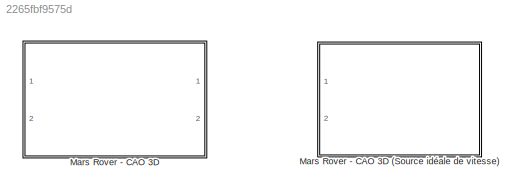
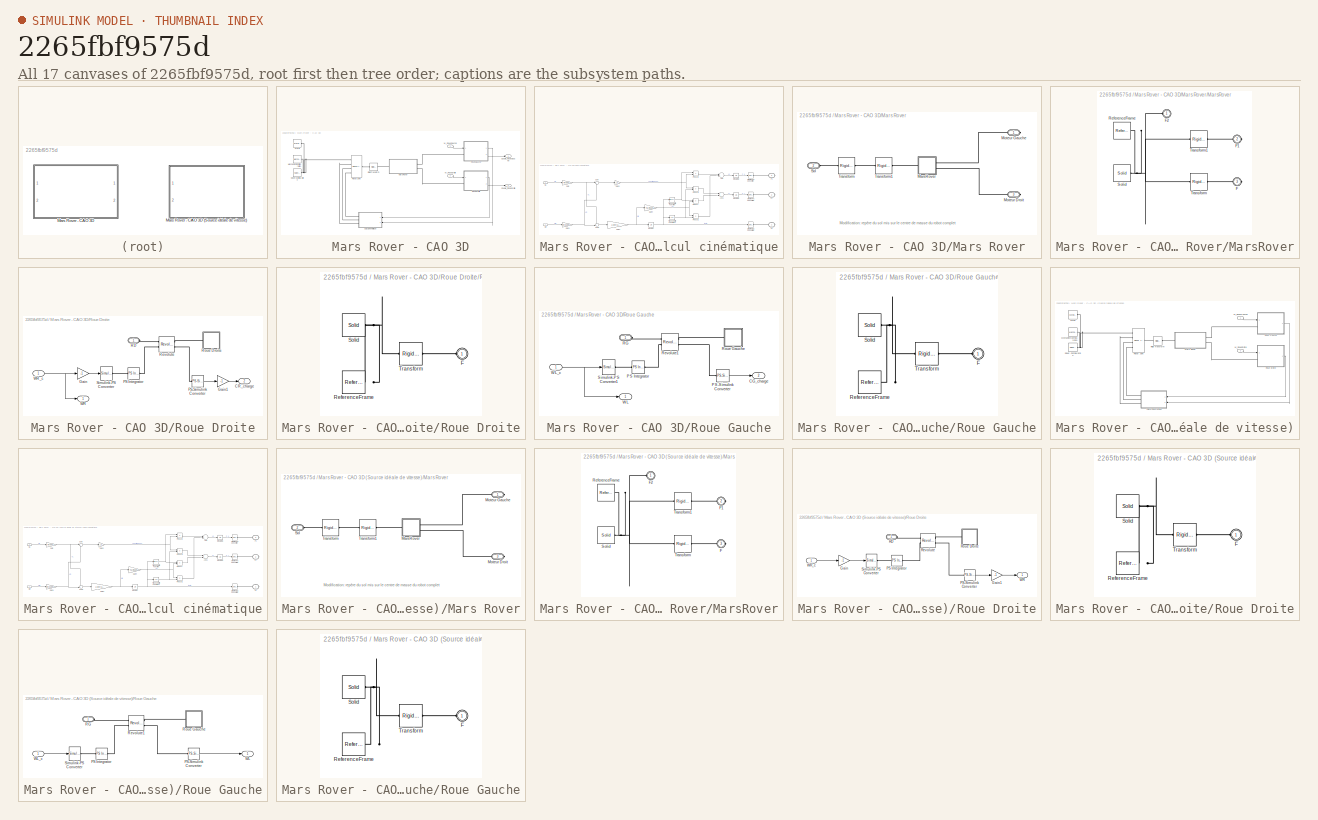
[diagram: thumbnail index - all 17 canvases of the model, root first then tree order]
MODEL slx_2265fbf9575d
KIND library
CONFIG AbsTol = auto
CONFIG FixedStep = auto
CONFIG MaxStep = auto
CONFIG MinStep = auto
CONFIG RelTol = 1e-3
CONFIG SampleTimeConstraint = Unconstrained
CONFIG Solver = ode45
CONFIG SolverMode = Auto
CONFIG SolverName = ode45
CONFIG StartTime = 0.0
CONFIG StopTime = 10.0
BLOCK [SubSystem] Mars Rover - CAO 3D
  Ports = [2, 2]
  RequestExecContextInheritance = off
BLOCK [SubSystem] Mars Rover - CAO 3D (Source idéale de vitesse)
  Ports = [2]
  RequestExecContextInheritance = off
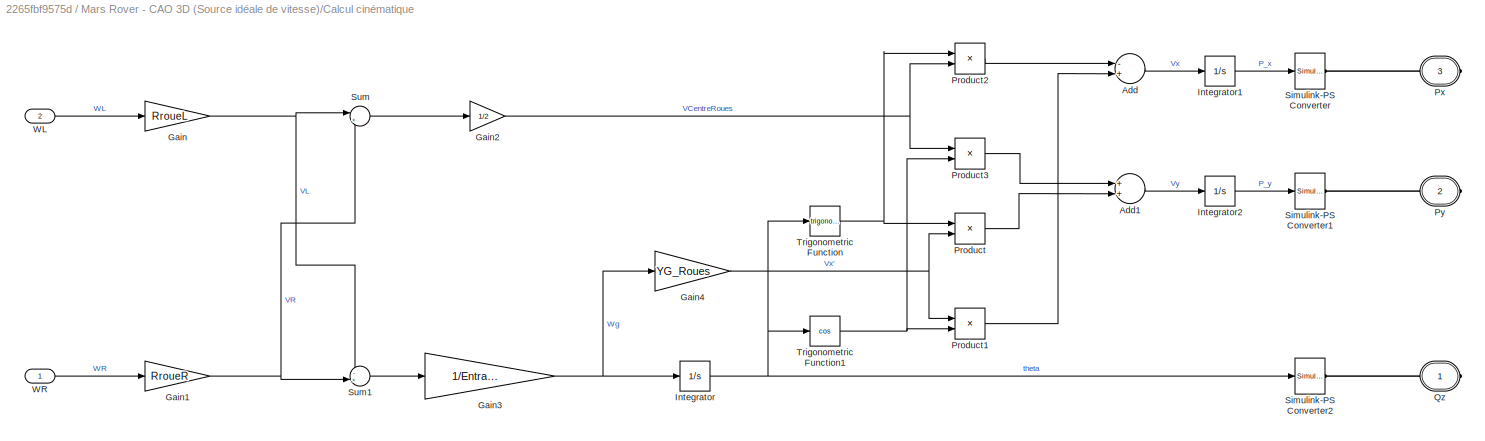
BLOCK [SubSystem] Mars Rover - CAO 3D (Source idéale de vitesse)/Calcul cinématique
  Ports = [2, 0, 0, 0, 0, 0, 3]
  RequestExecContextInheritance = off
BLOCK [Sum] Mars Rover - CAO 3D (Source idéale de vitesse)/Calcul cinématique/Add
  InputSameDT = off
  Inputs = -+
  OutDataTypeStr = Inherit: Inherit via internal rule
  Ports = [2, 1]
  SaturateOnIntegerOverflow = off
BLOCK [Sum] Mars Rover - CAO 3D (Source idéale de vitesse)/Calcul cinématique/Add1
  InputSameDT = off
  OutDataTypeStr = Inherit: Inherit via internal rule
  Ports = [2, 1]
  SaturateOnIntegerOverflow = off
BLOCK [Gain] Mars Rover - CAO 3D (Source idéale de vitesse)/Calcul cinématique/Gain
  Gain = RroueL
  OutDataTypeStr = Inherit: Inherit via internal rule
  ParamDataTypeStr = Inherit: Inherit via internal rule
  SaturateOnIntegerOverflow = off
BLOCK [Gain] Mars Rover - CAO 3D (Source idéale de vitesse)/Calcul cinématique/Gain1
  Gain = RroueR
  OutDataTypeStr = Inherit: Inherit via internal rule
  ParamDataTypeStr = Inherit: Inherit via internal rule
  SaturateOnIntegerOverflow = off
BLOCK [Gain] Mars Rover - CAO 3D (Source idéale de vitesse)/Calcul cinématique/Gain2
  Gain = 1/2
  OutDataTypeStr = Inherit: Inherit via internal rule
  ParamDataTypeStr = Inherit: Inherit via internal rule
  SaturateOnIntegerOverflow = off
BLOCK [Gain] Mars Rover - CAO 3D (Source idéale de vitesse)/Calcul cinématique/Gain3
  Gain = 1/Entraxe_Roues
  OutDataTypeStr = Inherit: Inherit via internal rule
  ParamDataTypeStr = Inherit: Inherit via internal rule
  SaturateOnIntegerOverflow = off
BLOCK [Gain] Mars Rover - CAO 3D (Source idéale de vitesse)/Calcul cinématique/Gain4
  Gain = YG_Roues
  OutDataTypeStr = Inherit: Inherit via internal rule
  ParamDataTypeStr = Inherit: Inherit via internal rule
  SaturateOnIntegerOverflow = off
BLOCK [Integrator] Mars Rover - CAO 3D (Source idéale de vitesse)/Calcul cinématique/Integrator
  Ports = [1, 1]
BLOCK [Integrator] Mars Rover - CAO 3D (Source idéale de vitesse)/Calcul cinématique/Integrator1
  Ports = [1, 1]
BLOCK [Integrator] Mars Rover - CAO 3D (Source idéale de vitesse)/Calcul cinématique/Integrator2
  Ports = [1, 1]
BLOCK [Product] Mars Rover - CAO 3D (Source idéale de vitesse)/Calcul cinématique/Product
  InputSameDT = off
  OutDataTypeStr = Inherit: Inherit via internal rule
  Ports = [2, 1]
  RndMeth = Floor
  SaturateOnIntegerOverflow = off
BLOCK [Product] Mars Rover - CAO 3D (Source idéale de vitesse)/Calcul cinématique/Product1
  InputSameDT = off
  OutDataTypeStr = Inherit: Inherit via internal rule
  Ports = [2, 1]
  RndMeth = Floor
  SaturateOnIntegerOverflow = off
BLOCK [Product] Mars Rover - CAO 3D (Source idéale de vitesse)/Calcul cinématique/Product2
  InputSameDT = off
  OutDataTypeStr = Inherit: Inherit via internal rule
  Ports = [2, 1]
  RndMeth = Floor
  SaturateOnIntegerOverflow = off
BLOCK [Product] Mars Rover - CAO 3D (Source idéale de vitesse)/Calcul cinématique/Product3
  InputSameDT = off
  OutDataTypeStr = Inherit: Inherit via internal rule
  Ports = [2, 1]
  RndMeth = Floor
  SaturateOnIntegerOverflow = off
BLOCK [PMIOPort] Mars Rover - CAO 3D (Source idéale de vitesse)/Calcul cinématique/Px
  Port = 3
  Side = Right
BLOCK [PMIOPort] Mars Rover - CAO 3D (Source idéale de vitesse)/Calcul cinématique/Py
  Port = 2
  Side = Right
BLOCK [PMIOPort] Mars Rover - CAO 3D (Source idéale de vitesse)/Calcul cinématique/Qz
  Port = 1
  Side = Right
BLOCK [Reference] Mars Rover - CAO 3D (Source idéale de vitesse)/Calcul cinématique/Simulink-PS Converter  REF=nesl_utility/Simulink-PS
Converter
  AffineConversion = off
  Frequencies = []
  InputFilterTimeConstant = 0.001
  InputFiltering = on
  LeftPortType = input
  NoiseDistribution = none
  NoiseParameters = []
  PhysicalDomain = network_engine_domain
  Ports = [1, 0, 0, 0, 0, 0, 1]
  PseudoPeriodic = off
  RightPortType = output
  SimscapeFilterOrder = 2
  SourceBlock = nesl_utility/Simulink-PS\nConverter
  SourceType = Simulink-PS\nConverter
  SubClassName = ps_input
  UdotUserProvided = 1
  Unit = 1
BLOCK [Reference] Mars Rover - CAO 3D (Source idéale de vitesse)/Calcul cinématique/Simulink-PS Converter1  REF=nesl_utility/Simulink-PS
Converter
  AffineConversion = off
  Frequencies = []
  InputFilterTimeConstant = 0.001
  InputFiltering = on
  LeftPortType = input
  NoiseDistribution = none
  NoiseParameters = []
  PhysicalDomain = network_engine_domain
  Ports = [1, 0, 0, 0, 0, 0, 1]
  PseudoPeriodic = off
  RightPortType = output
  SimscapeFilterOrder = 2
  SourceBlock = nesl_utility/Simulink-PS\nConverter
  SourceType = Simulink-PS\nConverter
  SubClassName = ps_input
  UdotUserProvided = 2
  Unit = 1
BLOCK [Reference] Mars Rover - CAO 3D (Source idéale de vitesse)/Calcul cinématique/Simulink-PS Converter2  REF=nesl_utility/Simulink-PS
Converter
  AffineConversion = off
  Frequencies = []
  InputFilterTimeConstant = 0.001
  InputFiltering = on
  LeftPortType = input
  NoiseDistribution = none
  NoiseParameters = []
  PhysicalDomain = network_engine_domain
  Ports = [1, 0, 0, 0, 0, 0, 1]
  PseudoPeriodic = off
  RightPortType = output
  SimscapeFilterOrder = 2
  SourceBlock = nesl_utility/Simulink-PS\nConverter
  SourceType = Simulink-PS\nConverter
  SubClassName = ps_input
  UdotUserProvided = 1
  Unit = 1
BLOCK [Sum] Mars Rover - CAO 3D (Source idéale de vitesse)/Calcul cinématique/Sum
  IconShape = round
  InputSameDT = off
  Inputs = |++
  OutDataTypeStr = Inherit: Inherit via internal rule
  Ports = [2, 1]
  SaturateOnIntegerOverflow = off
BLOCK [Sum] Mars Rover - CAO 3D (Source idéale de vitesse)/Calcul cinématique/Sum1
  IconShape = round
  InputSameDT = off
  Inputs = -+|
  OutDataTypeStr = Inherit: Inherit via internal rule
  Ports = [2, 1]
  SaturateOnIntegerOverflow = off
BLOCK [Trigonometry] Mars Rover - CAO 3D (Source idéale de vitesse)/Calcul cinématique/Trigonometric Function
  Ports = [1, 1]
BLOCK [Trigonometry] Mars Rover - CAO 3D (Source idéale de vitesse)/Calcul cinématique/Trigonometric Function1
  Operator = cos
  Ports = [1, 1]
BLOCK [Inport] Mars Rover - CAO 3D (Source idéale de vitesse)/Calcul cinématique/WL
  IconDisplay = Port number
  Port = 2
BLOCK [Inport] Mars Rover - CAO 3D (Source idéale de vitesse)/Calcul cinématique/WR
  IconDisplay = Port number
BLOCK [SubSystem] Mars Rover - CAO 3D (Source idéale de vitesse)/Mars Rover
  Ports = [0, 0, 0, 0, 0, 1, 2]
  RequestExecContextInheritance = off
BLOCK [SubSystem] Mars Rover - CAO 3D (Source idéale de vitesse)/Mars Rover/MarsRover
  Ports = [0, 0, 0, 0, 0, 1, 2]
  RequestExecContextInheritance = off
BLOCK [PMIOPort] Mars Rover - CAO 3D (Source idéale de vitesse)/Mars Rover/MarsRover/F
  Port = 3
  Side = Right
BLOCK [PMIOPort] Mars Rover - CAO 3D (Source idéale de vitesse)/Mars Rover/MarsRover/F1
  Port = 2
  Side = Right
BLOCK [PMIOPort] Mars Rover - CAO 3D (Source idéale de vitesse)/Mars Rover/MarsRover/F2
  Port = 1
  Side = Left
BLOCK [Reference] Mars Rover - CAO 3D (Source idéale de vitesse)/Mars Rover/MarsRover/ReferenceFrame  REF=sm_lib/Frames and
Transforms/Reference
Frame
  BlockFunction = simmechanics.library.frames_transforms.reference_frame
  ClassName = ReferenceFrame
  LogSimulationData = off
  Ports = [0, 0, 0, 0, 0, 0, 1]
  SourceBlock = sm_lib/Frames and\nTransforms/Reference\nFrame
  SourceType = Reference\nFrame
BLOCK [Reference] Mars Rover - CAO 3D (Source idéale de vitesse)/Mars Rover/MarsRover/Solid  REF=sm_lib/Body Elements/Solid
  BlockFunction = simmechanics.library.body_elements.solid
  BrickDimensionUnits = m
  BrickDimensions = [1 1 1]
  CenterOfMass = [61.674835748328746 75.384277802203073 134.64637320785567]
  CenterOfMassUnits = mm
  ClassName = Solid
  CylinderLength = 1
  CylinderLengthUnits = m
  CylinderRadius = 1
  CylinderRadiusUnits = m
  Density = 1000
  DensityBased = on
  DensityUnits = kg/(m^3)
  EllipsoidRadii = [1 1 1]
  EllipsoidRadiiUnits = m
  ExtGeomFileName = MarsRover_NoDriveWheels_SinglePart_Default_sldprt.STL
  ExtGeomFileType = STL
  ExtGeomFileUnits = mm
  ExtrusionCrossSection = [1 1; -1 1; -1 -1; 1 -1]
  ExtrusionCrossSectionUnits = m
  ExtrusionLength = 1
  ExtrusionLengthUnits = m
  GeometryShape = FromFile
  GraphicAmbientColor = [0.15 0.15 0.15 1.0]
  GraphicDiffuseColor = [0.792156862745098 0.81960784313725488 0.93333333333333335]
  GraphicEmissiveColor = [0.0 0.0 0.0 1.0]
  GraphicOpacity = 1
  GraphicShininess = 75
  GraphicSpecularColor = [0.5 0.5 0.5 1.0]
  GraphicType = FromGeometry
  GraphicVisPropType = SimpleVisualProperties
  InertiaType = Custom
  LogSimulationData = off
  MarkerShape = Sphere
  MarkerSize = 10
  MarkerSizeUnits = m
  Mass = 1.0211317142967473
  MassUnits = kg
  MomentsOfInertia = [7542.1257586655356 6843.967792375809 4550.3267221633623]
  MomentsOfInertiaUnits = kg*mm^2
  PolygonNumSides = 3
  PolygonOuterRadius = 1
  PolygonOuterRadiusUnits = m
  Ports = [0, 0, 0, 0, 0, 0, 1]
  ProductsOfInertia = [1620.1017318375987 -4.7316130781950152 -21.670982638196975]
  ProductsOfInertiaUnits = kg*mm^2
  RectangleSize = [1 1]
  RectangleSizeUnits = m
  RevolutionAngle = 180
  RevolutionAngleUnits = deg
  RevolutionCrossSection = [1 1; 1 -1; 2 -1; 2 1]
  RevolutionCrossSectionUnits = m
  RevolutionExtent = Full
  SourceBlock = sm_lib/Body Elements/Solid
  SourceType = Solid
  SphereRadius = 1
  SphereRadiusUnits = m
BLOCK [Reference] Mars Rover - CAO 3D (Source idéale de vitesse)/Mars Rover/MarsRover/Transform  REF=sm_lib/Frames and
Transforms/Rigid
Transform
  BaseAlignAxisA = +Y
  BaseAlignAxisB = +Z
  BlockFunction = simmechanics.library.frames_transforms.rigid_transform
  ClassName = RigidTransform
  FollAlignAxisA = +X
  FollAlignAxisB = +Y
  LogSimulationData = off
  Ports = [0, 0, 0, 0, 0, 1, 1]
  RotationAngle = 2.0943951023936886
  RotationAngleUnits = rad
  RotationArbitraryAxis = [0.5773502691893061 0.57735026918979027 0.57735026918978094]
  RotationMatrix = [1 0 0; 0 1 0; 0 0 1]
  RotationMethod = ArbitraryAxis
  RotationStandardAxis = +Z
  SourceBlock = sm_lib/Frames and\nTransforms/Rigid\nTransform
  SourceType = Rigid\nTransform
  TranslationCartesianOffset = [137.82919735339411 38.60485864744426 55.201744460213142]
  TranslationLengthUnit = mm
  TranslationMethod = Cartesian
  TranslationROffset = 0
  TranslationROffsetUnits = m
  TranslationStandardAxis = +Z
  TranslationStandardOffset = 0
  TranslationThetaOffset = 0
  TranslationThetaOffsetUnits = deg
  TranslationZOffset = 0
  TranslationZOffsetUnits = m
BLOCK [Reference] Mars Rover - CAO 3D (Source idéale de vitesse)/Mars Rover/MarsRover/Transform1  REF=sm_lib/Frames and
Transforms/Rigid
Transform
  BaseAlignAxisA = +Y
  BaseAlignAxisB = +Z
  BlockFunction = simmechanics.library.frames_transforms.rigid_transform
  ClassName = RigidTransform
  FollAlignAxisA = +X
  FollAlignAxisB = +Y
  LogSimulationData = off
  Ports = [0, 0, 0, 0, 0, 1, 1]
  RotationAngle = 2.0943951023929572
  RotationAngleUnits = rad
  RotationArbitraryAxis = [-0.5773502691897201 -0.57735026918954635 0.57735026918961074]
  RotationMatrix = [1 0 0; 0 1 0; 0 0 1]
  RotationMethod = ArbitraryAxis
  RotationStandardAxis = +Z
  SourceBlock = sm_lib/Frames and\nTransforms/Rigid\nTransform
  SourceType = Rigid\nTransform
  TranslationCartesianOffset = [-16.070802646633357 38.607611353283055 55.201233754902709]
  TranslationLengthUnit = mm
  TranslationMethod = Cartesian
  TranslationROffset = 0
  TranslationROffsetUnits = m
  TranslationStandardAxis = +Z
  TranslationStandardOffset = 0
  TranslationThetaOffset = 0
  TranslationThetaOffsetUnits = deg
  TranslationZOffset = 0
  TranslationZOffsetUnits = m
BLOCK [PMIOPort] Mars Rover - CAO 3D (Source idéale de vitesse)/Mars Rover/Moteur Droit
  Port = 3
  Side = Right
BLOCK [PMIOPort] Mars Rover - CAO 3D (Source idéale de vitesse)/Mars Rover/Moteur Gauche
  Port = 1
  Side = Right
BLOCK [PMIOPort] Mars Rover - CAO 3D (Source idéale de vitesse)/Mars Rover/Sol
  Port = 2
  Side = Left
BLOCK [Reference] Mars Rover - CAO 3D (Source idéale de vitesse)/Mars Rover/Transform  REF=sm_lib/Frames and
Transforms/Rigid
Transform
  BaseAlignAxisA = +Y
  BaseAlignAxisB = +Z
  BlockFunction = simmechanics.library.frames_transforms.rigid_transform
  ClassName = RigidTransform
  FollAlignAxisA = +X
  FollAlignAxisB = +Y
  LogSimulationData = off
  Ports = [0, 0, 0, 0, 0, 1, 1]
  RotationAngle = 0.0
  RotationAngleUnits = deg
  RotationArbitraryAxis = [0 0 1]
  RotationMatrix = [1 0 0; 0 1 0; 0 0 1]
  RotationMethod = None
  RotationStandardAxis = +Z
  SourceBlock = sm_lib/Frames and\nTransforms/Rigid\nTransform
  SourceType = Rigid\nTransform
  TranslationCartesianOffset = [2.953734684446832 23.071071336975447 79.092276022279805]
  TranslationLengthUnit = mm
  TranslationMethod = Cartesian
  TranslationROffset = 0
  TranslationROffsetUnits = m
  TranslationStandardAxis = +Z
  TranslationStandardOffset = 0
  TranslationThetaOffset = 0
  TranslationThetaOffsetUnits = deg
  TranslationZOffset = 0
  TranslationZOffsetUnits = m
BLOCK [Reference] Mars Rover - CAO 3D (Source idéale de vitesse)/Mars Rover/Transform1  REF=sm_lib/Frames and
Transforms/Rigid
Transform
  BaseAlignAxisA = +Y
  BaseAlignAxisB = +Z
  BlockFunction = simmechanics.library.frames_transforms.rigid_transform
  ClassName = RigidTransform
  FollAlignAxisA = +X
  FollAlignAxisB = +Y
  LogSimulationData = off
  Ports = [0, 0, 0, 0, 0, 1, 1]
  RotationAngle = 0.0
  RotationAngleUnits = deg
  RotationArbitraryAxis = [0 0 1]
  RotationMatrix = [1 0 0; 0 1 0; 0 0 1]
  RotationMethod = None
  RotationStandardAxis = +Z
  SourceBlock = sm_lib/Frames and\nTransforms/Rigid\nTransform
  SourceType = Rigid\nTransform
  TranslationCartesianOffset = [-64.41 -97.64 -211.97]
  TranslationLengthUnit = mm
  TranslationMethod = Cartesian
  TranslationROffset = 0
  TranslationROffsetUnits = m
  TranslationStandardAxis = +Z
  TranslationStandardOffset = 0
  TranslationThetaOffset = 0
  TranslationThetaOffsetUnits = deg
  TranslationZOffset = 0
  TranslationZOffsetUnits = m
BLOCK [Reference] Mars Rover - CAO 3D (Source idéale de vitesse)/MechanismConfiguration  REF=sm_lib/Utilities/Mechanism
Configuration
  BlockFunction = simmechanics.library.utilities.mechanism_configuration
  ClassName = MechanismConfiguration
  GravityUnits = m/s^2
  GravityVector = [0 -9.81 0]
  LinearizationDelta = 0.001
  LogSimulationData = off
  Ports = [0, 0, 0, 0, 0, 0, 1]
  SourceBlock = sm_lib/Utilities/Mechanism\nConfiguration
  SourceType = Mechanism\nConfiguration
  UniformGravity = Constant
BLOCK [Reference] Mars Rover - CAO 3D (Source idéale de vitesse)/Planar Joint  REF=sm_lib/Joints/Planar Joint
  BlockFunction = simmechanics.library.joints.planar_joint
  ClassName = PlanarJoint
  CompositeWrenchDir = FollowerOnBase
  CompositeWrenchFrame = BaseFrame
  LogSimulationData = off
  Ports = [0, 0, 0, 0, 0, 4, 1]
  PxDampingCoefficient = 0
  PxDampingCoefficientUnits = N/(m/s)
  PxEquilibriumPosition = 0
  PxEquilibriumPositionUnits = m
  PxMotionActuationMode = InputMotion
  PxPositionTargetPriority = High
  PxPositionTargetSpecify = off
  PxPositionTargetValue = 0
  PxPositionTargetValueUnits = m
  PxSenseAcceleration = off
  PxSensePosition = off
  PxSenseTorqueForce = off
  PxSenseVelocity = off
  PxSpringStiffness = 0
  PxSpringStiffnessUnits = N/m
  PxTorqueActuationMode = ComputedTorque
  PxVelocityTargetPriority = High
  PxVelocityTargetSpecify = off
  PxVelocityTargetValue = 0
  PxVelocityTargetValueUnits = m/s
  PyDampingCoefficient = 0
  PyDampingCoefficientUnits = N/(m/s)
  PyEquilibriumPosition = 0
  PyEquilibriumPositionUnits = m
  PyMotionActuationMode = InputMotion
  PyPositionTargetPriority = High
  PyPositionTargetSpecify = off
  PyPositionTargetValue = 0
  PyPositionTargetValueUnits = m
  PySenseAcceleration = off
  PySensePosition = off
  PySenseTorqueForce = off
  PySenseVelocity = off
  PySpringStiffness = 0
  PySpringStiffnessUnits = N/m
  PyTorqueActuationMode = ComputedTorque
  PyVelocityTargetPriority = High
  PyVelocityTargetSpecify = off
  PyVelocityTargetValue = 0
  PyVelocityTargetValueUnits = m/s
  RzDampingCoefficient = 0
  RzDampingCoefficientUnits = N*m/(deg/s)
  RzEquilibriumPosition = 0
  RzEquilibriumPositionUnits = deg
  RzMotionActuationMode = InputMotion
  RzPositionTargetPriority = High
  RzPositionTargetSpecify = off
  RzPositionTargetValue = 0
  RzPositionTargetValueUnits = deg
  RzSenseAcceleration = off
  RzSensePosition = off
  RzSenseTorqueForce = off
  RzSenseVelocity = off
  RzSpringStiffness = 0
  RzSpringStiffnessUnits = N*m/deg
  RzTorqueActuationMode = ComputedTorque
  RzVelocityTargetPriority = High
  RzVelocityTargetSpecify = off
  RzVelocityTargetValue = 0
  RzVelocityTargetValueUnits = deg/s
  SenseConstraintForce = off
  SenseConstraintForceX = off
  SenseConstraintForceY = off
  SenseConstraintForceZ = off
  SenseConstraintTorque = off
  SenseConstraintTorqueX = off
  SenseConstraintTorqueY = off
  SenseConstraintTorqueZ = off
  SenseTotalForce = off
  SenseTotalForceX = off
  SenseTotalForceY = off
  SenseTotalForceZ = off
  SenseTotalTorque = off
  SenseTotalTorqueX = off
  SenseTotalTorqueY = off
  SenseTotalTorqueZ = off
  SourceBlock = sm_lib/Joints/Planar Joint
  SourceType = Planar Joint
BLOCK [Reference] Mars Rover - CAO 3D (Source idéale de vitesse)/Rigid Transform  REF=sm_lib/Frames and
Transforms/Rigid
Transform
  BaseAlignAxisA = +Y
  BaseAlignAxisB = +Z
  BlockFunction = simmechanics.library.frames_transforms.rigid_transform
  ClassName = RigidTransform
  FollAlignAxisA = +X
  FollAlignAxisB = +Y
  LogSimulationData = off
  Ports = [0, 0, 0, 0, 0, 1, 1]
  RotationAngle = 90
  RotationAngleUnits = deg
  RotationArbitraryAxis = [0 0 1]
  RotationMatrix = [1 0 0; 0 1 0; 0 0 1]
  RotationMethod = StandardAxis
  RotationStandardAxis = +X
  SourceBlock = sm_lib/Frames and\nTransforms/Rigid\nTransform
  SourceType = Rigid\nTransform
  TranslationCartesianOffset = [0 0 0]
  TranslationLengthUnit = m
  TranslationMethod = None
  TranslationROffset = 0
  TranslationROffsetUnits = m
  TranslationStandardAxis = +Z
  TranslationStandardOffset = 0
  TranslationThetaOffset = 0
  TranslationThetaOffsetUnits = deg
  TranslationZOffset = 0
  TranslationZOffsetUnits = m
BLOCK [SubSystem] Mars Rover - CAO 3D (Source idéale de vitesse)/Roue Droite
  Ports = [1, 1, 0, 0, 0, 1]
  RequestExecContextInheritance = off
BLOCK [Gain] Mars Rover - CAO 3D (Source idéale de vitesse)/Roue Droite/Gain
  Gain = -1
  OutDataTypeStr = Inherit: Inherit via internal rule
  ParamDataTypeStr = Inherit: Inherit via internal rule
  SaturateOnIntegerOverflow = off
BLOCK [Gain] Mars Rover - CAO 3D (Source idéale de vitesse)/Roue Droite/Gain1
  Gain = -1
  OutDataTypeStr = Inherit: Inherit via internal rule
  ParamDataTypeStr = Inherit: Inherit via internal rule
  SaturateOnIntegerOverflow = off
BLOCK [Reference] Mars Rover - CAO 3D (Source idéale de vitesse)/Roue Droite/PS Integrator  REF=fl_lib/Physical Signals/Linear Operators/PS Integrator
  ClassName = integrator
  ComponentPath = foundation.physical_signal.linear.integrator
  ComponentVariantNames = integrator
  ComponentVariants = foundation.physical_signal.linear.integrator
  LogSimulationData = off
  Ports = [0, 0, 0, 0, 0, 1, 1]
  SchemaVersion = 1
  SourceBlock = fl_lib/Physical Signals/Linear Operators/PS Integrator
  SourceFile = foundation.physical_signal.linear.integrator
  SourceType = PS Integrator
  x0 = 0
  x0_unit = 1
BLOCK [Reference] Mars Rover - CAO 3D (Source idéale de vitesse)/Roue Droite/PS-Simulink Converter  REF=nesl_utility/PS-Simulink
Converter
  AffineConversion = off
  Frequencies = []
  LeftPortType = input
  PhysicalDomain = network_engine_domain
  Ports = [0, 1, 0, 0, 0, 1]
  PseudoPeriodic = off
  RightPortType = output
  SourceBlock = nesl_utility/PS-Simulink\nConverter
  SourceType = PS-Simulink\nConverter
  SubClassName = ps_output
  Unit = rad/s
BLOCK [PMIOPort] Mars Rover - CAO 3D (Source idéale de vitesse)/Roue Droite/RD
  Port = 1
  Side = Left
BLOCK [Reference] Mars Rover - CAO 3D (Source idéale de vitesse)/Roue Droite/Revolute  REF=sm_lib/Joints/Revolute Joint
  BlockFunction = simmechanics.library.joints.revolute_joint
  ClassName = RevoluteJoint
  CompositeWrenchDir = FollowerOnBase
  CompositeWrenchFrame = BaseFrame
  DampingCoefficient = 0
  DampingCoefficientUnits = m*s*N/rad
  EquilibriumPosition = 0
  EquilibriumPositionUnits = rad
  LogSimulationData = off
  MotionActuationMode = InputMotion
  Ports = [0, 0, 0, 0, 0, 2, 2]
  PositionTargetPriority = Low
  PositionTargetSpecify = on
  PositionTargetValue = 89.999999999970058
  PositionTargetValueUnits = deg
  SenseAcceleration = off
  SenseConstraintForce = off
  SenseConstraintForceX = off
  SenseConstraintForceY = off
  SenseConstraintForceZ = off
  SenseConstraintTorque = off
  SenseConstraintTorqueX = off
  SenseConstraintTorqueY = off
  SenseConstraintTorqueZ = off
  SensePosition = off
  SenseTorqueForce = off
  SenseTotalForce = off
  SenseTotalForceX = off
  SenseTotalForceY = off
  SenseTotalForceZ = off
  SenseTotalTorque = off
  SenseTotalTorqueX = off
  SenseTotalTorqueY = off
  SenseTotalTorqueZ = off
  SenseVelocity = on
  SourceBlock = sm_lib/Joints/Revolute Joint
  SourceType = Revolute Joint
  SpringStiffness = 0
  SpringStiffnessUnits = m*N/rad
  TorqueActuationMode = ComputedTorque
  VelocityTargetPriority = High
  VelocityTargetSpecify = off
  VelocityTargetValue = 0
  VelocityTargetValueUnits = deg/s
BLOCK [SubSystem] Mars Rover - CAO 3D (Source idéale de vitesse)/Roue Droite/Roue Droite
  Ports = [0, 0, 0, 0, 0, 1]
  RequestExecContextInheritance = off
BLOCK [PMIOPort] Mars Rover - CAO 3D (Source idéale de vitesse)/Roue Droite/Roue Droite/F
  Port = 1
  Side = Left
BLOCK [Reference] Mars Rover - CAO 3D (Source idéale de vitesse)/Roue Droite/Roue Droite/ReferenceFrame  REF=sm_lib/Frames and
Transforms/Reference
Frame
  BlockFunction = simmechanics.library.frames_transforms.reference_frame
  ClassName = ReferenceFrame
  LogSimulationData = off
  Ports = [0, 0, 0, 0, 0, 0, 1]
  SourceBlock = sm_lib/Frames and\nTransforms/Reference\nFrame
  SourceType = Reference\nFrame
BLOCK [Reference] Mars Rover - CAO 3D (Source idéale de vitesse)/Roue Droite/Roue Droite/Solid  REF=sm_lib/Body Elements/Solid
  BlockFunction = simmechanics.library.body_elements.solid
  BrickDimensionUnits = m
  BrickDimensions = [1 1 1]
  CenterOfMass = [-33.299875035775997 3.696209413594743 33.298425582135032]
  CenterOfMassUnits = mm
  ClassName = Solid
  CylinderLength = 1
  CylinderLengthUnits = m
  CylinderRadius = 1
  CylinderRadiusUnits = m
  Density = 1000
  DensityBased = on
  DensityUnits = kg/(m^3)
  EllipsoidRadii = [1 1 1]
  EllipsoidRadiiUnits = m
  ExtGeomFileName = Roue Motrices - Volume_Default_sldprt.STL
  ExtGeomFileType = STL
  ExtGeomFileUnits = mm
  ExtrusionCrossSection = [1 1; -1 1; -1 -1; 1 -1]
  ExtrusionCrossSectionUnits = m
  ExtrusionLength = 1
  ExtrusionLengthUnits = m
  GeometryShape = FromFile
  GraphicAmbientColor = [0.15 0.15 0.15 1.0]
  GraphicDiffuseColor = [1 1 1]
  GraphicEmissiveColor = [0.0 0.0 0.0 1.0]
  GraphicOpacity = 1
  GraphicShininess = 75
  GraphicSpecularColor = [0.5 0.5 0.5 1.0]
  GraphicType = FromGeometry
  GraphicVisPropType = SimpleVisualProperties
  InertiaType = Custom
  LogSimulationData = off
  MarkerShape = Sphere
  MarkerSize = 10
  MarkerSizeUnits = m
  Mass = 0.011632924055634574
  MassUnits = kg
  MomentsOfInertia = [4.6142410715542228 9.1390807616821892 4.6142372763537987]
  MomentsOfInertiaUnits = kg*mm^2
  PolygonNumSides = 3
  PolygonOuterRadius = 1
  PolygonOuterRadiusUnits = m
  Ports = [0, 0, 0, 0, 0, 0, 1]
  ProductsOfInertia = [2.4556200568945777e-05 -3.378540987405786e-05 1.9826965985893407e-05]
  ProductsOfInertiaUnits = kg*mm^2
  RectangleSize = [1 1]
  RectangleSizeUnits = m
  RevolutionAngle = 180
  RevolutionAngleUnits = deg
  RevolutionCrossSection = [1 1; 1 -1; 2 -1; 2 1]
  RevolutionCrossSectionUnits = m
  RevolutionExtent = Full
  SourceBlock = sm_lib/Body Elements/Solid
  SourceType = Solid
  SphereRadius = 1
  SphereRadiusUnits = m
BLOCK [Reference] Mars Rover - CAO 3D (Source idéale de vitesse)/Roue Droite/Roue Droite/Transform  REF=sm_lib/Frames and
Transforms/Rigid
Transform
  BaseAlignAxisA = +Y
  BaseAlignAxisB = +Z
  BlockFunction = simmechanics.library.frames_transforms.rigid_transform
  ClassName = RigidTransform
  FollAlignAxisA = +X
  FollAlignAxisB = +Y
  LogSimulationData = off
  Ports = [0, 0, 0, 0, 0, 1, 1]
  RotationAngle = 2.0943951023928067
  RotationAngleUnits = rad
  RotationArbitraryAxis = [0.57735026918949617 -0.57735026918949728 0.57735026918988386]
  RotationMatrix = [1 0 0; 0 1 0; 0 0 1]
  RotationMethod = ArbitraryAxis
  RotationStandardAxis = +Z
  SourceBlock = sm_lib/Frames and\nTransforms/Rigid\nTransform
  SourceType = Rigid\nTransform
  TranslationCartesianOffset = [-33.300000000000054 9.3000000000199918 33.297918023586696]
  TranslationLengthUnit = mm
  TranslationMethod = Cartesian
  TranslationROffset = 0
  TranslationROffsetUnits = m
  TranslationStandardAxis = +Z
  TranslationStandardOffset = 0
  TranslationThetaOffset = 0
  TranslationThetaOffsetUnits = deg
  TranslationZOffset = 0
  TranslationZOffsetUnits = m
BLOCK [Reference] Mars Rover - CAO 3D (Source idéale de vitesse)/Roue Droite/Simulink-PS Converter  REF=nesl_utility/Simulink-PS
Converter
  AffineConversion = off
  Frequencies = []
  InputFilterTimeConstant = 0.001
  InputFiltering = off
  LeftPortType = input
  NoiseDistribution = none
  NoiseParameters = []
  PhysicalDomain = network_engine_domain
  Ports = [1, 0, 0, 0, 0, 0, 1]
  PseudoPeriodic = off
  RightPortType = output
  SimscapeFilterOrder = 1
  SourceBlock = nesl_utility/Simulink-PS\nConverter
  SourceType = Simulink-PS\nConverter
  SubClassName = ps_input
  UdotUserProvided = 1
  Unit = rad/s
BLOCK [Outport] Mars Rover - CAO 3D (Source idéale de vitesse)/Roue Droite/WR 
  IconDisplay = Port number
BLOCK [Inport] Mars Rover - CAO 3D (Source idéale de vitesse)/Roue Droite/WR_c
  IconDisplay = Port number
BLOCK [SubSystem] Mars Rover - CAO 3D (Source idéale de vitesse)/Roue Gauche
  Ports = [1, 1, 0, 0, 0, 1]
  RequestExecContextInheritance = off
BLOCK [Reference] Mars Rover - CAO 3D (Source idéale de vitesse)/Roue Gauche/PS Integrator  REF=fl_lib/Physical Signals/Linear Operators/PS Integrator
  ClassName = integrator
  ComponentPath = foundation.physical_signal.linear.integrator
  ComponentVariantNames = integrator
  ComponentVariants = foundation.physical_signal.linear.integrator
  LogSimulationData = off
  Ports = [0, 0, 0, 0, 0, 1, 1]
  SchemaVersion = 1
  SourceBlock = fl_lib/Physical Signals/Linear Operators/PS Integrator
  SourceFile = foundation.physical_signal.linear.integrator
  SourceType = PS Integrator
  x0 = 0
  x0_unit = 1
BLOCK [Reference] Mars Rover - CAO 3D (Source idéale de vitesse)/Roue Gauche/PS-Simulink Converter  REF=nesl_utility/PS-Simulink
Converter
  AffineConversion = off
  Frequencies = []
  LeftPortType = input
  PhysicalDomain = network_engine_domain
  Ports = [0, 1, 0, 0, 0, 1]
  PseudoPeriodic = off
  RightPortType = output
  SourceBlock = nesl_utility/PS-Simulink\nConverter
  SourceType = PS-Simulink\nConverter
  SubClassName = ps_output
  Unit = rad/s
BLOCK [PMIOPort] Mars Rover - CAO 3D (Source idéale de vitesse)/Roue Gauche/RG
  Port = 1
  Side = Left
BLOCK [Reference] Mars Rover - CAO 3D (Source idéale de vitesse)/Roue Gauche/Revolute1  REF=sm_lib/Joints/Revolute Joint
  BlockFunction = simmechanics.library.joints.revolute_joint
  ClassName = RevoluteJoint
  CompositeWrenchDir = FollowerOnBase
  CompositeWrenchFrame = BaseFrame
  DampingCoefficient = 0
  DampingCoefficientUnits = m*s*N/rad
  EquilibriumPosition = 0
  EquilibriumPositionUnits = rad
  LogSimulationData = off
  MotionActuationMode = InputMotion
  Ports = [0, 0, 0, 0, 0, 2, 2]
  PositionTargetPriority = Low
  PositionTargetSpecify = on
  PositionTargetValue = -68.979023307426303
  PositionTargetValueUnits = deg
  SenseAcceleration = off
  SenseConstraintForce = off
  SenseConstraintForceX = off
  SenseConstraintForceY = off
  SenseConstraintForceZ = off
  SenseConstraintTorque = off
  SenseConstraintTorqueX = off
  SenseConstraintTorqueY = off
  SenseConstraintTorqueZ = off
  SensePosition = off
  SenseTorqueForce = off
  SenseTotalForce = off
  SenseTotalForceX = off
  SenseTotalForceY = off
  SenseTotalForceZ = off
  SenseTotalTorque = off
  SenseTotalTorqueX = off
  SenseTotalTorqueY = off
  SenseTotalTorqueZ = off
  SenseVelocity = on
  SourceBlock = sm_lib/Joints/Revolute Joint
  SourceType = Revolute Joint
  SpringStiffness = 0
  SpringStiffnessUnits = m*N/rad
  TorqueActuationMode = ComputedTorque
  VelocityTargetPriority = High
  VelocityTargetSpecify = off
  VelocityTargetValue = 0
  VelocityTargetValueUnits = deg/s
BLOCK [SubSystem] Mars Rover - CAO 3D (Source idéale de vitesse)/Roue Gauche/Roue Gauche
  Ports = [0, 0, 0, 0, 0, 1]
  RequestExecContextInheritance = off
BLOCK [PMIOPort] Mars Rover - CAO 3D (Source idéale de vitesse)/Roue Gauche/Roue Gauche/F
  Port = 1
  Side = Left
BLOCK [Reference] Mars Rover - CAO 3D (Source idéale de vitesse)/Roue Gauche/Roue Gauche/ReferenceFrame  REF=sm_lib/Frames and
Transforms/Reference
Frame
  BlockFunction = simmechanics.library.frames_transforms.reference_frame
  ClassName = ReferenceFrame
  LogSimulationData = off
  Ports = [0, 0, 0, 0, 0, 0, 1]
  SourceBlock = sm_lib/Frames and\nTransforms/Reference\nFrame
  SourceType = Reference\nFrame
BLOCK [Reference] Mars Rover - CAO 3D (Source idéale de vitesse)/Roue Gauche/Roue Gauche/Solid  REF=sm_lib/Body Elements/Solid
  BlockFunction = simmechanics.library.body_elements.solid
  BrickDimensionUnits = m
  BrickDimensions = [1 1 1]
  CenterOfMass = [-33.299875035775997 3.696209413594743 33.298425582135032]
  CenterOfMassUnits = mm
  ClassName = Solid
  CylinderLength = 1
  CylinderLengthUnits = m
  CylinderRadius = 1
  CylinderRadiusUnits = m
  Density = 1000
  DensityBased = on
  DensityUnits = kg/(m^3)
  EllipsoidRadii = [1 1 1]
  EllipsoidRadiiUnits = m
  ExtGeomFileName = Roue Motrices - Volume_Default_sldprt.STL
  ExtGeomFileType = STL
  ExtGeomFileUnits = mm
  ExtrusionCrossSection = [1 1; -1 1; -1 -1; 1 -1]
  ExtrusionCrossSectionUnits = m
  ExtrusionLength = 1
  ExtrusionLengthUnits = m
  GeometryShape = FromFile
  GraphicAmbientColor = [0.15 0.15 0.15 1.0]
  GraphicDiffuseColor = [1 1 1]
  GraphicEmissiveColor = [0.0 0.0 0.0 1.0]
  GraphicOpacity = 1
  GraphicShininess = 75
  GraphicSpecularColor = [0.5 0.5 0.5 1.0]
  GraphicType = FromGeometry
  GraphicVisPropType = SimpleVisualProperties
  InertiaType = Custom
  LogSimulationData = off
  MarkerShape = Sphere
  MarkerSize = 10
  MarkerSizeUnits = m
  Mass = 0.011632924055634574
  MassUnits = kg
  MomentsOfInertia = [4.6142410715542228 9.1390807616821892 4.6142372763537987]
  MomentsOfInertiaUnits = kg*mm^2
  PolygonNumSides = 3
  PolygonOuterRadius = 1
  PolygonOuterRadiusUnits = m
  Ports = [0, 0, 0, 0, 0, 0, 1]
  ProductsOfInertia = [2.4556200568945777e-05 -3.378540987405786e-05 1.9826965985893407e-05]
  ProductsOfInertiaUnits = kg*mm^2
  RectangleSize = [1 1]
  RectangleSizeUnits = m
  RevolutionAngle = 180
  RevolutionAngleUnits = deg
  RevolutionCrossSection = [1 1; 1 -1; 2 -1; 2 1]
  RevolutionCrossSectionUnits = m
  RevolutionExtent = Full
  SourceBlock = sm_lib/Body Elements/Solid
  SourceType = Solid
  SphereRadius = 1
  SphereRadiusUnits = m
BLOCK [Reference] Mars Rover - CAO 3D (Source idéale de vitesse)/Roue Gauche/Roue Gauche/Transform  REF=sm_lib/Frames and
Transforms/Rigid
Transform
  BaseAlignAxisA = +Y
  BaseAlignAxisB = +Z
  BlockFunction = simmechanics.library.frames_transforms.rigid_transform
  ClassName = RigidTransform
  FollAlignAxisA = +X
  FollAlignAxisB = +Y
  LogSimulationData = off
  Ports = [0, 0, 0, 0, 0, 1, 1]
  RotationAngle = 2.0943951023928071
  RotationAngleUnits = rad
  RotationArbitraryAxis = [0.57735026918949628 -0.57735026918949706 0.57735026918988397]
  RotationMatrix = [1 0 0; 0 1 0; 0 0 1]
  RotationMethod = ArbitraryAxis
  RotationStandardAxis = +Z
  SourceBlock = sm_lib/Frames and\nTransforms/Rigid\nTransform
  SourceType = Rigid\nTransform
  TranslationCartesianOffset = [-33.300000000000047 9.3000000000199989 33.29791802358671]
  TranslationLengthUnit = mm
  TranslationMethod = Cartesian
  TranslationROffset = 0
  TranslationROffsetUnits = m
  TranslationStandardAxis = +Z
  TranslationStandardOffset = 0
  TranslationThetaOffset = 0
  TranslationThetaOffsetUnits = deg
  TranslationZOffset = 0
  TranslationZOffsetUnits = m
BLOCK [Reference] Mars Rover - CAO 3D (Source idéale de vitesse)/Roue Gauche/Simulink-PS Converter  REF=nesl_utility/Simulink-PS
Converter
  AffineConversion = off
  Frequencies = []
  InputFilterTimeConstant = 0.001
  InputFiltering = off
  LeftPortType = input
  NoiseDistribution = none
  NoiseParameters = []
  PhysicalDomain = network_engine_domain
  Ports = [1, 0, 0, 0, 0, 0, 1]
  PseudoPeriodic = off
  RightPortType = output
  SimscapeFilterOrder = 1
  SourceBlock = nesl_utility/Simulink-PS\nConverter
  SourceType = Simulink-PS\nConverter
  SubClassName = ps_input
  UdotUserProvided = 1
  Unit = rad/s
BLOCK [Outport] Mars Rover - CAO 3D (Source idéale de vitesse)/Roue Gauche/WL
  IconDisplay = Port number
BLOCK [Inport] Mars Rover - CAO 3D (Source idéale de vitesse)/Roue Gauche/WL_c
  IconDisplay = Port number
BLOCK [Reference] Mars Rover - CAO 3D (Source idéale de vitesse)/Solver Configuration  REF=nesl_utility/Solver
Configuration
  AbsTol = 1e-06
  Accelerate = off
  AutomaticFiltering = on
  DelaysMemoryBudget = 1024
  DoDC = off
  DoFixedCost = off
  EnableSwitchedLinearOptims = on
  FilteringTimeConstant = 0.001
  FrequencyDomain = off
  Harmonics = []
  LeftPortType = input
  LinearAlgebra = Sparse
  LocalSolverChoice = NE_BACKWARD_EULER_ADVANCER
  LocalSolverSampleTime = 0.001
  MaxModeIter = 2
  MaxNonlinIter = 3
  MinStep = 1e-09
  NumHomotopyIterations = 100
  PhysicalDomain = network_engine_domain
  Ports = [0, 0, 0, 0, 0, 0, 1]
  Profile = off
  RelTol = 0.001
  ResidualTolerance = 1e-09
  RevertToSquareIcSolve = off
  RightPortType = generic
  SimulateNoise = off
  SourceBlock = nesl_utility/Solver\nConfiguration
  SourceType = Solver\nConfiguration
  SubClassName = solver
  ToWorkspace = off
  Tones = []
  UseCCode = off
  UseLocalSampling = off
  UseLocalSolver = off
BLOCK [Inport] Mars Rover - CAO 3D (Source idéale de vitesse)/W_RoueDroite
  IconDisplay = Port number
  Port = 2
BLOCK [Inport] Mars Rover - CAO 3D (Source idéale de vitesse)/W_RoueGauche
  IconDisplay = Port number
BLOCK [Reference] Mars Rover - CAO 3D (Source idéale de vitesse)/World  REF=sm_lib/Frames and
Transforms/World Frame
  BlockFunction = simmechanics.library.frames_transforms.world_frame
  ClassName = WorldFrame
  LogSimulationData = off
  Ports = [0, 0, 0, 0, 0, 0, 1]
  SourceBlock = sm_lib/Frames and\nTransforms/World Frame
  SourceType = World Frame
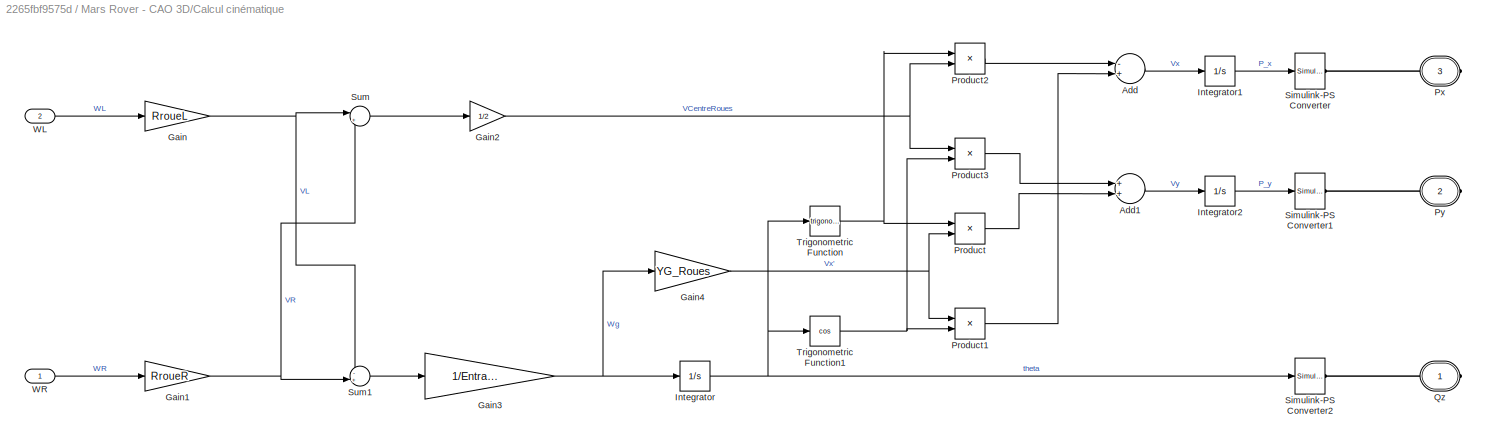
BLOCK [SubSystem] Mars Rover - CAO 3D/Calcul cinématique
  Ports = [2, 0, 0, 0, 0, 0, 3]
  RequestExecContextInheritance = off
BLOCK [Sum] Mars Rover - CAO 3D/Calcul cinématique/Add
  InputSameDT = off
  Inputs = -+
  OutDataTypeStr = Inherit: Inherit via internal rule
  Ports = [2, 1]
  SaturateOnIntegerOverflow = off
BLOCK [Sum] Mars Rover - CAO 3D/Calcul cinématique/Add1
  InputSameDT = off
  OutDataTypeStr = Inherit: Inherit via internal rule
  Ports = [2, 1]
  SaturateOnIntegerOverflow = off
BLOCK [Gain] Mars Rover - CAO 3D/Calcul cinématique/Gain
  Gain = RroueL
  OutDataTypeStr = Inherit: Inherit via internal rule
  ParamDataTypeStr = Inherit: Inherit via internal rule
  SaturateOnIntegerOverflow = off
BLOCK [Gain] Mars Rover - CAO 3D/Calcul cinématique/Gain1
  Gain = RroueR
  OutDataTypeStr = Inherit: Inherit via internal rule
  ParamDataTypeStr = Inherit: Inherit via internal rule
  SaturateOnIntegerOverflow = off
BLOCK [Gain] Mars Rover - CAO 3D/Calcul cinématique/Gain2
  Gain = 1/2
  OutDataTypeStr = Inherit: Inherit via internal rule
  ParamDataTypeStr = Inherit: Inherit via internal rule
  SaturateOnIntegerOverflow = off
BLOCK [Gain] Mars Rover - CAO 3D/Calcul cinématique/Gain3
  Gain = 1/Entraxe_Roues
  OutDataTypeStr = Inherit: Inherit via internal rule
  ParamDataTypeStr = Inherit: Inherit via internal rule
  SaturateOnIntegerOverflow = off
BLOCK [Gain] Mars Rover - CAO 3D/Calcul cinématique/Gain4
  Gain = YG_Roues
  OutDataTypeStr = Inherit: Inherit via internal rule
  ParamDataTypeStr = Inherit: Inherit via internal rule
  SaturateOnIntegerOverflow = off
BLOCK [Integrator] Mars Rover - CAO 3D/Calcul cinématique/Integrator
  Ports = [1, 1]
BLOCK [Integrator] Mars Rover - CAO 3D/Calcul cinématique/Integrator1
  Ports = [1, 1]
BLOCK [Integrator] Mars Rover - CAO 3D/Calcul cinématique/Integrator2
  Ports = [1, 1]
BLOCK [Product] Mars Rover - CAO 3D/Calcul cinématique/Product
  InputSameDT = off
  OutDataTypeStr = Inherit: Inherit via internal rule
  Ports = [2, 1]
  RndMeth = Floor
  SaturateOnIntegerOverflow = off
BLOCK [Product] Mars Rover - CAO 3D/Calcul cinématique/Product1
  InputSameDT = off
  OutDataTypeStr = Inherit: Inherit via internal rule
  Ports = [2, 1]
  RndMeth = Floor
  SaturateOnIntegerOverflow = off
BLOCK [Product] Mars Rover - CAO 3D/Calcul cinématique/Product2
  InputSameDT = off
  OutDataTypeStr = Inherit: Inherit via internal rule
  Ports = [2, 1]
  RndMeth = Floor
  SaturateOnIntegerOverflow = off
BLOCK [Product] Mars Rover - CAO 3D/Calcul cinématique/Product3
  InputSameDT = off
  OutDataTypeStr = Inherit: Inherit via internal rule
  Ports = [2, 1]
  RndMeth = Floor
  SaturateOnIntegerOverflow = off
BLOCK [PMIOPort] Mars Rover - CAO 3D/Calcul cinématique/Px
  Port = 3
  Side = Right
BLOCK [PMIOPort] Mars Rover - CAO 3D/Calcul cinématique/Py
  Port = 2
  Side = Right
BLOCK [PMIOPort] Mars Rover - CAO 3D/Calcul cinématique/Qz
  Port = 1
  Side = Right
BLOCK [Reference] Mars Rover - CAO 3D/Calcul cinématique/Simulink-PS Converter  REF=nesl_utility/Simulink-PS
Converter
  AffineConversion = off
  Frequencies = []
  InputFilterTimeConstant = 0.001
  InputFiltering = on
  LeftPortType = input
  NoiseDistribution = none
  NoiseParameters = []
  PhysicalDomain = network_engine_domain
  Ports = [1, 0, 0, 0, 0, 0, 1]
  PseudoPeriodic = off
  RightPortType = output
  SimscapeFilterOrder = 2
  SourceBlock = nesl_utility/Simulink-PS\nConverter
  SourceType = Simulink-PS\nConverter
  SubClassName = ps_input
  UdotUserProvided = 1
  Unit = 1
BLOCK [Reference] Mars Rover - CAO 3D/Calcul cinématique/Simulink-PS Converter1  REF=nesl_utility/Simulink-PS
Converter
  AffineConversion = off
  Frequencies = []
  InputFilterTimeConstant = 0.001
  InputFiltering = on
  LeftPortType = input
  NoiseDistribution = none
  NoiseParameters = []
  PhysicalDomain = network_engine_domain
  Ports = [1, 0, 0, 0, 0, 0, 1]
  PseudoPeriodic = off
  RightPortType = output
  SimscapeFilterOrder = 2
  SourceBlock = nesl_utility/Simulink-PS\nConverter
  SourceType = Simulink-PS\nConverter
  SubClassName = ps_input
  UdotUserProvided = 2
  Unit = 1
BLOCK [Reference] Mars Rover - CAO 3D/Calcul cinématique/Simulink-PS Converter2  REF=nesl_utility/Simulink-PS
Converter
  AffineConversion = off
  Frequencies = []
  InputFilterTimeConstant = 0.001
  InputFiltering = on
  LeftPortType = input
  NoiseDistribution = none
  NoiseParameters = []
  PhysicalDomain = network_engine_domain
  Ports = [1, 0, 0, 0, 0, 0, 1]
  PseudoPeriodic = off
  RightPortType = output
  SimscapeFilterOrder = 2
  SourceBlock = nesl_utility/Simulink-PS\nConverter
  SourceType = Simulink-PS\nConverter
  SubClassName = ps_input
  UdotUserProvided = 1
  Unit = 1
BLOCK [Sum] Mars Rover - CAO 3D/Calcul cinématique/Sum
  IconShape = round
  InputSameDT = off
  Inputs = |++
  OutDataTypeStr = Inherit: Inherit via internal rule
  Ports = [2, 1]
  SaturateOnIntegerOverflow = off
BLOCK [Sum] Mars Rover - CAO 3D/Calcul cinématique/Sum1
  IconShape = round
  InputSameDT = off
  Inputs = -+|
  OutDataTypeStr = Inherit: Inherit via internal rule
  Ports = [2, 1]
  SaturateOnIntegerOverflow = off
BLOCK [Trigonometry] Mars Rover - CAO 3D/Calcul cinématique/Trigonometric Function
  Ports = [1, 1]
BLOCK [Trigonometry] Mars Rover - CAO 3D/Calcul cinématique/Trigonometric Function1
  Operator = cos
  Ports = [1, 1]
BLOCK [Inport] Mars Rover - CAO 3D/Calcul cinématique/WL
  IconDisplay = Port number
  Port = 2
BLOCK [Inport] Mars Rover - CAO 3D/Calcul cinématique/WR
  IconDisplay = Port number
BLOCK [Outport] Mars Rover - CAO 3D/Couple_RoueDroite
  IconDisplay = Port number
  Port = 2
BLOCK [Outport] Mars Rover - CAO 3D/Couple_RoueGauche
  IconDisplay = Port number
BLOCK [SubSystem] Mars Rover - CAO 3D/Mars Rover
  Ports = [0, 0, 0, 0, 0, 1, 2]
  RequestExecContextInheritance = off
BLOCK [SubSystem] Mars Rover - CAO 3D/Mars Rover/MarsRover
  Ports = [0, 0, 0, 0, 0, 1, 2]
  RequestExecContextInheritance = off
BLOCK [PMIOPort] Mars Rover - CAO 3D/Mars Rover/MarsRover/F
  Port = 3
  Side = Right
BLOCK [PMIOPort] Mars Rover - CAO 3D/Mars Rover/MarsRover/F1
  Port = 2
  Side = Right
BLOCK [PMIOPort] Mars Rover - CAO 3D/Mars Rover/MarsRover/F2
  Port = 1
  Side = Left
BLOCK [Reference] Mars Rover - CAO 3D/Mars Rover/MarsRover/ReferenceFrame  REF=sm_lib/Frames and
Transforms/Reference
Frame
  BlockFunction = simmechanics.library.frames_transforms.reference_frame
  ClassName = ReferenceFrame
  LogSimulationData = off
  Ports = [0, 0, 0, 0, 0, 0, 1]
  SourceBlock = sm_lib/Frames and\nTransforms/Reference\nFrame
  SourceType = Reference\nFrame
BLOCK [Reference] Mars Rover - CAO 3D/Mars Rover/MarsRover/Solid  REF=sm_lib/Body Elements/Solid
  BlockFunction = simmechanics.library.body_elements.solid
  BrickDimensionUnits = m
  BrickDimensions = [1 1 1]
  CenterOfMass = [61.674835748328746 75.384277802203073 134.64637320785567]
  CenterOfMassUnits = mm
  ClassName = Solid
  CylinderLength = 1
  CylinderLengthUnits = m
  CylinderRadius = 1
  CylinderRadiusUnits = m
  Density = 1000
  DensityBased = on
  DensityUnits = kg/(m^3)
  EllipsoidRadii = [1 1 1]
  EllipsoidRadiiUnits = m
  ExtGeomFileName = MarsRover_NoDriveWheels_SinglePart_Default_sldprt.STL
  ExtGeomFileType = STL
  ExtGeomFileUnits = mm
  ExtrusionCrossSection = [1 1; -1 1; -1 -1; 1 -1]
  ExtrusionCrossSectionUnits = m
  ExtrusionLength = 1
  ExtrusionLengthUnits = m
  GeometryShape = FromFile
  GraphicAmbientColor = [0.15 0.15 0.15 1.0]
  GraphicDiffuseColor = [0.792156862745098 0.81960784313725488 0.93333333333333335]
  GraphicEmissiveColor = [0.0 0.0 0.0 1.0]
  GraphicOpacity = 1
  GraphicShininess = 75
  GraphicSpecularColor = [0.5 0.5 0.5 1.0]
  GraphicType = FromGeometry
  GraphicVisPropType = SimpleVisualProperties
  InertiaType = Custom
  LogSimulationData = off
  MarkerShape = Sphere
  MarkerSize = 10
  MarkerSizeUnits = m
  Mass = 1.0211317142967473
  MassUnits = kg
  MomentsOfInertia = [7542.1257586655356 6843.967792375809 4550.3267221633623]
  MomentsOfInertiaUnits = kg*mm^2
  PolygonNumSides = 3
  PolygonOuterRadius = 1
  PolygonOuterRadiusUnits = m
  Ports = [0, 0, 0, 0, 0, 0, 1]
  ProductsOfInertia = [1620.1017318375987 -4.7316130781950152 -21.670982638196975]
  ProductsOfInertiaUnits = kg*mm^2
  RectangleSize = [1 1]
  RectangleSizeUnits = m
  RevolutionAngle = 180
  RevolutionAngleUnits = deg
  RevolutionCrossSection = [1 1; 1 -1; 2 -1; 2 1]
  RevolutionCrossSectionUnits = m
  RevolutionExtent = Full
  SourceBlock = sm_lib/Body Elements/Solid
  SourceType = Solid
  SphereRadius = 1
  SphereRadiusUnits = m
BLOCK [Reference] Mars Rover - CAO 3D/Mars Rover/MarsRover/Transform  REF=sm_lib/Frames and
Transforms/Rigid
Transform
  BaseAlignAxisA = +Y
  BaseAlignAxisB = +Z
  BlockFunction = simmechanics.library.frames_transforms.rigid_transform
  ClassName = RigidTransform
  FollAlignAxisA = +X
  FollAlignAxisB = +Y
  LogSimulationData = off
  Ports = [0, 0, 0, 0, 0, 1, 1]
  RotationAngle = 2.0943951023936886
  RotationAngleUnits = rad
  RotationArbitraryAxis = [0.5773502691893061 0.57735026918979027 0.57735026918978094]
  RotationMatrix = [1 0 0; 0 1 0; 0 0 1]
  RotationMethod = ArbitraryAxis
  RotationStandardAxis = +Z
  SourceBlock = sm_lib/Frames and\nTransforms/Rigid\nTransform
  SourceType = Rigid\nTransform
  TranslationCartesianOffset = [137.82919735339411 38.60485864744426 55.201744460213142]
  TranslationLengthUnit = mm
  TranslationMethod = Cartesian
  TranslationROffset = 0
  TranslationROffsetUnits = m
  TranslationStandardAxis = +Z
  TranslationStandardOffset = 0
  TranslationThetaOffset = 0
  TranslationThetaOffsetUnits = deg
  TranslationZOffset = 0
  TranslationZOffsetUnits = m
BLOCK [Reference] Mars Rover - CAO 3D/Mars Rover/MarsRover/Transform1  REF=sm_lib/Frames and
Transforms/Rigid
Transform
  BaseAlignAxisA = +Y
  BaseAlignAxisB = +Z
  BlockFunction = simmechanics.library.frames_transforms.rigid_transform
  ClassName = RigidTransform
  FollAlignAxisA = +X
  FollAlignAxisB = +Y
  LogSimulationData = off
  Ports = [0, 0, 0, 0, 0, 1, 1]
  RotationAngle = 2.0943951023929572
  RotationAngleUnits = rad
  RotationArbitraryAxis = [-0.5773502691897201 -0.57735026918954635 0.57735026918961074]
  RotationMatrix = [1 0 0; 0 1 0; 0 0 1]
  RotationMethod = ArbitraryAxis
  RotationStandardAxis = +Z
  SourceBlock = sm_lib/Frames and\nTransforms/Rigid\nTransform
  SourceType = Rigid\nTransform
  TranslationCartesianOffset = [-16.070802646633357 38.607611353283055 55.201233754902709]
  TranslationLengthUnit = mm
  TranslationMethod = Cartesian
  TranslationROffset = 0
  TranslationROffsetUnits = m
  TranslationStandardAxis = +Z
  TranslationStandardOffset = 0
  TranslationThetaOffset = 0
  TranslationThetaOffsetUnits = deg
  TranslationZOffset = 0
  TranslationZOffsetUnits = m
BLOCK [PMIOPort] Mars Rover - CAO 3D/Mars Rover/Moteur Droit
  Port = 3
  Side = Right
BLOCK [PMIOPort] Mars Rover - CAO 3D/Mars Rover/Moteur Gauche
  Port = 1
  Side = Right
BLOCK [PMIOPort] Mars Rover - CAO 3D/Mars Rover/Sol
  Port = 2
  Side = Left
BLOCK [Reference] Mars Rover - CAO 3D/Mars Rover/Transform  REF=sm_lib/Frames and
Transforms/Rigid
Transform
  BaseAlignAxisA = +Y
  BaseAlignAxisB = +Z
  BlockFunction = simmechanics.library.frames_transforms.rigid_transform
  ClassName = RigidTransform
  FollAlignAxisA = +X
  FollAlignAxisB = +Y
  LogSimulationData = off
  Ports = [0, 0, 0, 0, 0, 1, 1]
  RotationAngle = 0.0
  RotationAngleUnits = deg
  RotationArbitraryAxis = [0 0 1]
  RotationMatrix = [1 0 0; 0 1 0; 0 0 1]
  RotationMethod = None
  RotationStandardAxis = +Z
  SourceBlock = sm_lib/Frames and\nTransforms/Rigid\nTransform
  SourceType = Rigid\nTransform
  TranslationCartesianOffset = [2.953734684446832 23.071071336975447 79.092276022279805]
  TranslationLengthUnit = mm
  TranslationMethod = Cartesian
  TranslationROffset = 0
  TranslationROffsetUnits = m
  TranslationStandardAxis = +Z
  TranslationStandardOffset = 0
  TranslationThetaOffset = 0
  TranslationThetaOffsetUnits = deg
  TranslationZOffset = 0
  TranslationZOffsetUnits = m
BLOCK [Reference] Mars Rover - CAO 3D/Mars Rover/Transform1  REF=sm_lib/Frames and
Transforms/Rigid
Transform
  BaseAlignAxisA = +Y
  BaseAlignAxisB = +Z
  BlockFunction = simmechanics.library.frames_transforms.rigid_transform
  ClassName = RigidTransform
  FollAlignAxisA = +X
  FollAlignAxisB = +Y
  LogSimulationData = off
  Ports = [0, 0, 0, 0, 0, 1, 1]
  RotationAngle = 0.0
  RotationAngleUnits = deg
  RotationArbitraryAxis = [0 0 1]
  RotationMatrix = [1 0 0; 0 1 0; 0 0 1]
  RotationMethod = None
  RotationStandardAxis = +Z
  SourceBlock = sm_lib/Frames and\nTransforms/Rigid\nTransform
  SourceType = Rigid\nTransform
  TranslationCartesianOffset = [-64.41 -97.64 -211.97]
  TranslationLengthUnit = mm
  TranslationMethod = Cartesian
  TranslationROffset = 0
  TranslationROffsetUnits = m
  TranslationStandardAxis = +Z
  TranslationStandardOffset = 0
  TranslationThetaOffset = 0
  TranslationThetaOffsetUnits = deg
  TranslationZOffset = 0
  TranslationZOffsetUnits = m
BLOCK [Reference] Mars Rover - CAO 3D/MechanismConfiguration  REF=sm_lib/Utilities/Mechanism
Configuration
  BlockFunction = simmechanics.library.utilities.mechanism_configuration
  ClassName = MechanismConfiguration
  GravityUnits = m/s^2
  GravityVector = [0 -9.81 0]
  LinearizationDelta = 0.001
  LogSimulationData = off
  Ports = [0, 0, 0, 0, 0, 0, 1]
  SourceBlock = sm_lib/Utilities/Mechanism\nConfiguration
  SourceType = Mechanism\nConfiguration
  UniformGravity = Constant
BLOCK [Reference] Mars Rover - CAO 3D/Planar Joint  REF=sm_lib/Joints/Planar Joint
  BlockFunction = simmechanics.library.joints.planar_joint
  ClassName = PlanarJoint
  CompositeWrenchDir = FollowerOnBase
  CompositeWrenchFrame = BaseFrame
  LogSimulationData = off
  Ports = [0, 0, 0, 0, 0, 4, 1]
  PxDampingCoefficient = 0
  PxDampingCoefficientUnits = N/(m/s)
  PxEquilibriumPosition = 0
  PxEquilibriumPositionUnits = m
  PxMotionActuationMode = InputMotion
  PxPositionTargetPriority = High
  PxPositionTargetSpecify = off
  PxPositionTargetValue = 0
  PxPositionTargetValueUnits = m
  PxSenseAcceleration = off
  PxSensePosition = off
  PxSenseTorqueForce = off
  PxSenseVelocity = off
  PxSpringStiffness = 0
  PxSpringStiffnessUnits = N/m
  PxTorqueActuationMode = ComputedTorque
  PxVelocityTargetPriority = High
  PxVelocityTargetSpecify = off
  PxVelocityTargetValue = 0
  PxVelocityTargetValueUnits = m/s
  PyDampingCoefficient = 0
  PyDampingCoefficientUnits = N/(m/s)
  PyEquilibriumPosition = 0
  PyEquilibriumPositionUnits = m
  PyMotionActuationMode = InputMotion
  PyPositionTargetPriority = High
  PyPositionTargetSpecify = off
  PyPositionTargetValue = 0
  PyPositionTargetValueUnits = m
  PySenseAcceleration = off
  PySensePosition = off
  PySenseTorqueForce = off
  PySenseVelocity = off
  PySpringStiffness = 0
  PySpringStiffnessUnits = N/m
  PyTorqueActuationMode = ComputedTorque
  PyVelocityTargetPriority = High
  PyVelocityTargetSpecify = off
  PyVelocityTargetValue = 0
  PyVelocityTargetValueUnits = m/s
  RzDampingCoefficient = 0
  RzDampingCoefficientUnits = N*m/(deg/s)
  RzEquilibriumPosition = 0
  RzEquilibriumPositionUnits = deg
  RzMotionActuationMode = InputMotion
  RzPositionTargetPriority = High
  RzPositionTargetSpecify = off
  RzPositionTargetValue = 0
  RzPositionTargetValueUnits = deg
  RzSenseAcceleration = off
  RzSensePosition = off
  RzSenseTorqueForce = off
  RzSenseVelocity = off
  RzSpringStiffness = 0
  RzSpringStiffnessUnits = N*m/deg
  RzTorqueActuationMode = ComputedTorque
  RzVelocityTargetPriority = High
  RzVelocityTargetSpecify = off
  RzVelocityTargetValue = 0
  RzVelocityTargetValueUnits = deg/s
  SenseConstraintForce = off
  SenseConstraintForceX = off
  SenseConstraintForceY = off
  SenseConstraintForceZ = off
  SenseConstraintTorque = off
  SenseConstraintTorqueX = off
  SenseConstraintTorqueY = off
  SenseConstraintTorqueZ = off
  SenseTotalForce = off
  SenseTotalForceX = off
  SenseTotalForceY = off
  SenseTotalForceZ = off
  SenseTotalTorque = off
  SenseTotalTorqueX = off
  SenseTotalTorqueY = off
  SenseTotalTorqueZ = off
  SourceBlock = sm_lib/Joints/Planar Joint
  SourceType = Planar Joint
BLOCK [Reference] Mars Rover - CAO 3D/Rigid Transform  REF=sm_lib/Frames and
Transforms/Rigid
Transform
  BaseAlignAxisA = +Y
  BaseAlignAxisB = +Z
  BlockFunction = simmechanics.library.frames_transforms.rigid_transform
  ClassName = RigidTransform
  FollAlignAxisA = +X
  FollAlignAxisB = +Y
  LogSimulationData = off
  Ports = [0, 0, 0, 0, 0, 1, 1]
  RotationAngle = 90
  RotationAngleUnits = deg
  RotationArbitraryAxis = [0 0 1]
  RotationMatrix = [1 0 0; 0 1 0; 0 0 1]
  RotationMethod = StandardAxis
  RotationStandardAxis = +X
  SourceBlock = sm_lib/Frames and\nTransforms/Rigid\nTransform
  SourceType = Rigid\nTransform
  TranslationCartesianOffset = [0 0 0]
  TranslationLengthUnit = m
  TranslationMethod = None
  TranslationROffset = 0
  TranslationROffsetUnits = m
  TranslationStandardAxis = +Z
  TranslationStandardOffset = 0
  TranslationThetaOffset = 0
  TranslationThetaOffsetUnits = deg
  TranslationZOffset = 0
  TranslationZOffsetUnits = m
BLOCK [SubSystem] Mars Rover - CAO 3D/Roue Droite
  Ports = [1, 2, 0, 0, 0, 1]
  RequestExecContextInheritance = off
BLOCK [Outport] Mars Rover - CAO 3D/Roue Droite/CR_charge
  IconDisplay = Port number
  Port = 2
BLOCK [Gain] Mars Rover - CAO 3D/Roue Droite/Gain
  Gain = -1
  OutDataTypeStr = Inherit: Inherit via internal rule
  ParamDataTypeStr = Inherit: Inherit via internal rule
  SaturateOnIntegerOverflow = off
BLOCK [Gain] Mars Rover - CAO 3D/Roue Droite/Gain1
  Gain = -1
  OutDataTypeStr = Inherit: Inherit via internal rule
  ParamDataTypeStr = Inherit: Inherit via internal rule
  SaturateOnIntegerOverflow = off
BLOCK [Reference] Mars Rover - CAO 3D/Roue Droite/PS Integrator  REF=fl_lib/Physical Signals/Linear Operators/PS Integrator
  ClassName = integrator
  ComponentPath = foundation.physical_signal.linear.integrator
  ComponentVariantNames = integrator
  ComponentVariants = foundation.physical_signal.linear.integrator
  LogSimulationData = off
  Ports = [0, 0, 0, 0, 0, 1, 1]
  SchemaVersion = 1
  SourceBlock = fl_lib/Physical Signals/Linear Operators/PS Integrator
  SourceFile = foundation.physical_signal.linear.integrator
  SourceType = PS Integrator
  x0 = 0
  x0_unit = 1
BLOCK [Reference] Mars Rover - CAO 3D/Roue Droite/PS-Simulink Converter  REF=nesl_utility/PS-Simulink
Converter
  AffineConversion = off
  Frequencies = []
  LeftPortType = input
  PhysicalDomain = network_engine_domain
  Ports = [0, 1, 0, 0, 0, 1]
  PseudoPeriodic = off
  RightPortType = output
  SourceBlock = nesl_utility/PS-Simulink\nConverter
  SourceType = PS-Simulink\nConverter
  SubClassName = ps_output
  Unit = 1
BLOCK [PMIOPort] Mars Rover - CAO 3D/Roue Droite/RD
  Port = 1
  Side = Left
BLOCK [Reference] Mars Rover - CAO 3D/Roue Droite/Revolute  REF=sm_lib/Joints/Revolute Joint
  BlockFunction = simmechanics.library.joints.revolute_joint
  ClassName = RevoluteJoint
  CompositeWrenchDir = FollowerOnBase
  CompositeWrenchFrame = BaseFrame
  DampingCoefficient = 0
  DampingCoefficientUnits = m*s*N/rad
  EquilibriumPosition = 0
  EquilibriumPositionUnits = rad
  LogSimulationData = off
  MotionActuationMode = InputMotion
  Ports = [0, 0, 0, 0, 0, 2, 2]
  PositionTargetPriority = Low
  PositionTargetSpecify = on
  PositionTargetValue = 89.999999999970058
  PositionTargetValueUnits = deg
  SenseAcceleration = off
  SenseConstraintForce = off
  SenseConstraintForceX = off
  SenseConstraintForceY = off
  SenseConstraintForceZ = off
  SenseConstraintTorque = off
  SenseConstraintTorqueX = off
  SenseConstraintTorqueY = off
  SenseConstraintTorqueZ = off
  SensePosition = off
  SenseTorqueForce = on
  SenseTotalForce = off
  SenseTotalForceX = off
  SenseTotalForceY = off
  SenseTotalForceZ = off
  SenseTotalTorque = off
  SenseTotalTorqueX = off
  SenseTotalTorqueY = off
  SenseTotalTorqueZ = off
  SenseVelocity = off
  SourceBlock = sm_lib/Joints/Revolute Joint
  SourceType = Revolute Joint
  SpringStiffness = 0
  SpringStiffnessUnits = m*N/rad
  TorqueActuationMode = ComputedTorque
  VelocityTargetPriority = High
  VelocityTargetSpecify = off
  VelocityTargetValue = 0
  VelocityTargetValueUnits = deg/s
BLOCK [SubSystem] Mars Rover - CAO 3D/Roue Droite/Roue Droite
  Ports = [0, 0, 0, 0, 0, 1]
  RequestExecContextInheritance = off
BLOCK [PMIOPort] Mars Rover - CAO 3D/Roue Droite/Roue Droite/F
  Port = 1
  Side = Left
BLOCK [Reference] Mars Rover - CAO 3D/Roue Droite/Roue Droite/ReferenceFrame  REF=sm_lib/Frames and
Transforms/Reference
Frame
  BlockFunction = simmechanics.library.frames_transforms.reference_frame
  ClassName = ReferenceFrame
  LogSimulationData = off
  Ports = [0, 0, 0, 0, 0, 0, 1]
  SourceBlock = sm_lib/Frames and\nTransforms/Reference\nFrame
  SourceType = Reference\nFrame
BLOCK [Reference] Mars Rover - CAO 3D/Roue Droite/Roue Droite/Solid  REF=sm_lib/Body Elements/Solid
  BlockFunction = simmechanics.library.body_elements.solid
  BrickDimensionUnits = m
  BrickDimensions = [1 1 1]
  CenterOfMass = [-33.299875035775997 3.696209413594743 33.298425582135032]
  CenterOfMassUnits = mm
  ClassName = Solid
  CylinderLength = 1
  CylinderLengthUnits = m
  CylinderRadius = 1
  CylinderRadiusUnits = m
  Density = 1000
  DensityBased = on
  DensityUnits = kg/(m^3)
  EllipsoidRadii = [1 1 1]
  EllipsoidRadiiUnits = m
  ExtGeomFileName = Roue Motrices - Volume_Default_sldprt.STL
  ExtGeomFileType = STL
  ExtGeomFileUnits = mm
  ExtrusionCrossSection = [1 1; -1 1; -1 -1; 1 -1]
  ExtrusionCrossSectionUnits = m
  ExtrusionLength = 1
  ExtrusionLengthUnits = m
  GeometryShape = FromFile
  GraphicAmbientColor = [0.15 0.15 0.15 1.0]
  GraphicDiffuseColor = [1 1 1]
  GraphicEmissiveColor = [0.0 0.0 0.0 1.0]
  GraphicOpacity = 1
  GraphicShininess = 75
  GraphicSpecularColor = [0.5 0.5 0.5 1.0]
  GraphicType = FromGeometry
  GraphicVisPropType = SimpleVisualProperties
  InertiaType = Custom
  LogSimulationData = off
  MarkerShape = Sphere
  MarkerSize = 10
  MarkerSizeUnits = m
  Mass = 0.011632924055634574
  MassUnits = kg
  MomentsOfInertia = [4.6142410715542228 9.1390807616821892 4.6142372763537987]
  MomentsOfInertiaUnits = kg*mm^2
  PolygonNumSides = 3
  PolygonOuterRadius = 1
  PolygonOuterRadiusUnits = m
  Ports = [0, 0, 0, 0, 0, 0, 1]
  ProductsOfInertia = [2.4556200568945777e-05 -3.378540987405786e-05 1.9826965985893407e-05]
  ProductsOfInertiaUnits = kg*mm^2
  RectangleSize = [1 1]
  RectangleSizeUnits = m
  RevolutionAngle = 180
  RevolutionAngleUnits = deg
  RevolutionCrossSection = [1 1; 1 -1; 2 -1; 2 1]
  RevolutionCrossSectionUnits = m
  RevolutionExtent = Full
  SourceBlock = sm_lib/Body Elements/Solid
  SourceType = Solid
  SphereRadius = 1
  SphereRadiusUnits = m
BLOCK [Reference] Mars Rover - CAO 3D/Roue Droite/Roue Droite/Transform  REF=sm_lib/Frames and
Transforms/Rigid
Transform
  BaseAlignAxisA = +Y
  BaseAlignAxisB = +Z
  BlockFunction = simmechanics.library.frames_transforms.rigid_transform
  ClassName = RigidTransform
  FollAlignAxisA = +X
  FollAlignAxisB = +Y
  LogSimulationData = off
  Ports = [0, 0, 0, 0, 0, 1, 1]
  RotationAngle = 2.0943951023928067
  RotationAngleUnits = rad
  RotationArbitraryAxis = [0.57735026918949617 -0.57735026918949728 0.57735026918988386]
  RotationMatrix = [1 0 0; 0 1 0; 0 0 1]
  RotationMethod = ArbitraryAxis
  RotationStandardAxis = +Z
  SourceBlock = sm_lib/Frames and\nTransforms/Rigid\nTransform
  SourceType = Rigid\nTransform
  TranslationCartesianOffset = [-33.300000000000054 9.3000000000199918 33.297918023586696]
  TranslationLengthUnit = mm
  TranslationMethod = Cartesian
  TranslationROffset = 0
  TranslationROffsetUnits = m
  TranslationStandardAxis = +Z
  TranslationStandardOffset = 0
  TranslationThetaOffset = 0
  TranslationThetaOffsetUnits = deg
  TranslationZOffset = 0
  TranslationZOffsetUnits = m
BLOCK [Reference] Mars Rover - CAO 3D/Roue Droite/Simulink-PS Converter  REF=nesl_utility/Simulink-PS
Converter
  AffineConversion = off
  Frequencies = []
  InputFilterTimeConstant = 0.001
  InputFiltering = off
  LeftPortType = input
  NoiseDistribution = none
  NoiseParameters = []
  PhysicalDomain = network_engine_domain
  Ports = [1, 0, 0, 0, 0, 0, 1]
  PseudoPeriodic = off
  RightPortType = output
  SimscapeFilterOrder = 1
  SourceBlock = nesl_utility/Simulink-PS\nConverter
  SourceType = Simulink-PS\nConverter
  SubClassName = ps_input
  UdotUserProvided = 1
  Unit = rad/s
BLOCK [Outport] Mars Rover - CAO 3D/Roue Droite/WR 
  IconDisplay = Port number
BLOCK [Inport] Mars Rover - CAO 3D/Roue Droite/WR_c
  IconDisplay = Port number
BLOCK [SubSystem] Mars Rover - CAO 3D/Roue Gauche
  Ports = [1, 2, 0, 0, 0, 1]
  RequestExecContextInheritance = off
BLOCK [Outport] Mars Rover - CAO 3D/Roue Gauche/CG_charge
  IconDisplay = Port number
  Port = 2
BLOCK [Reference] Mars Rover - CAO 3D/Roue Gauche/PS Integrator  REF=fl_lib/Physical Signals/Linear Operators/PS Integrator
  ClassName = integrator
  ComponentPath = foundation.physical_signal.linear.integrator
  ComponentVariantNames = integrator
  ComponentVariants = foundation.physical_signal.linear.integrator
  LogSimulationData = off
  Ports = [0, 0, 0, 0, 0, 1, 1]
  SchemaVersion = 1
  SourceBlock = fl_lib/Physical Signals/Linear Operators/PS Integrator
  SourceFile = foundation.physical_signal.linear.integrator
  SourceType = PS Integrator
  x0 = 0
  x0_unit = 1
BLOCK [Reference] Mars Rover - CAO 3D/Roue Gauche/PS-Simulink Converter  REF=nesl_utility/PS-Simulink
Converter
  AffineConversion = off
  Frequencies = []
  LeftPortType = input
  PhysicalDomain = network_engine_domain
  Ports = [0, 1, 0, 0, 0, 1]
  PseudoPeriodic = off
  RightPortType = output
  SourceBlock = nesl_utility/PS-Simulink\nConverter
  SourceType = PS-Simulink\nConverter
  SubClassName = ps_output
  Unit = 1
BLOCK [PMIOPort] Mars Rover - CAO 3D/Roue Gauche/RG
  Port = 1
  Side = Left
BLOCK [Reference] Mars Rover - CAO 3D/Roue Gauche/Revolute1  REF=sm_lib/Joints/Revolute Joint
  BlockFunction = simmechanics.library.joints.revolute_joint
  ClassName = RevoluteJoint
  CompositeWrenchDir = FollowerOnBase
  CompositeWrenchFrame = BaseFrame
  DampingCoefficient = 0
  DampingCoefficientUnits = m*s*N/rad
  EquilibriumPosition = 0
  EquilibriumPositionUnits = rad
  LogSimulationData = off
  MotionActuationMode = InputMotion
  Ports = [0, 0, 0, 0, 0, 2, 2]
  PositionTargetPriority = Low
  PositionTargetSpecify = on
  PositionTargetValue = -68.979023307426303
  PositionTargetValueUnits = deg
  SenseAcceleration = off
  SenseConstraintForce = off
  SenseConstraintForceX = off
  SenseConstraintForceY = off
  SenseConstraintForceZ = off
  SenseConstraintTorque = off
  SenseConstraintTorqueX = off
  SenseConstraintTorqueY = off
  SenseConstraintTorqueZ = off
  SensePosition = off
  SenseTorqueForce = on
  SenseTotalForce = off
  SenseTotalForceX = off
  SenseTotalForceY = off
  SenseTotalForceZ = off
  SenseTotalTorque = off
  SenseTotalTorqueX = off
  SenseTotalTorqueY = off
  SenseTotalTorqueZ = off
  SenseVelocity = off
  SourceBlock = sm_lib/Joints/Revolute Joint
  SourceType = Revolute Joint
  SpringStiffness = 0
  SpringStiffnessUnits = m*N/rad
  TorqueActuationMode = ComputedTorque
  VelocityTargetPriority = High
  VelocityTargetSpecify = off
  VelocityTargetValue = 0
  VelocityTargetValueUnits = deg/s
BLOCK [SubSystem] Mars Rover - CAO 3D/Roue Gauche/Roue Gauche
  Ports = [0, 0, 0, 0, 0, 1]
  RequestExecContextInheritance = off
BLOCK [PMIOPort] Mars Rover - CAO 3D/Roue Gauche/Roue Gauche/F
  Port = 1
  Side = Left
BLOCK [Reference] Mars Rover - CAO 3D/Roue Gauche/Roue Gauche/ReferenceFrame  REF=sm_lib/Frames and
Transforms/Reference
Frame
  BlockFunction = simmechanics.library.frames_transforms.reference_frame
  ClassName = ReferenceFrame
  LogSimulationData = off
  Ports = [0, 0, 0, 0, 0, 0, 1]
  SourceBlock = sm_lib/Frames and\nTransforms/Reference\nFrame
  SourceType = Reference\nFrame
BLOCK [Reference] Mars Rover - CAO 3D/Roue Gauche/Roue Gauche/Solid  REF=sm_lib/Body Elements/Solid
  BlockFunction = simmechanics.library.body_elements.solid
  BrickDimensionUnits = m
  BrickDimensions = [1 1 1]
  CenterOfMass = [-33.299875035775997 3.696209413594743 33.298425582135032]
  CenterOfMassUnits = mm
  ClassName = Solid
  CylinderLength = 1
  CylinderLengthUnits = m
  CylinderRadius = 1
  CylinderRadiusUnits = m
  Density = 1000
  DensityBased = on
  DensityUnits = kg/(m^3)
  EllipsoidRadii = [1 1 1]
  EllipsoidRadiiUnits = m
  ExtGeomFileName = Roue Motrices - Volume_Default_sldprt.STL
  ExtGeomFileType = STL
  ExtGeomFileUnits = mm
  ExtrusionCrossSection = [1 1; -1 1; -1 -1; 1 -1]
  ExtrusionCrossSectionUnits = m
  ExtrusionLength = 1
  ExtrusionLengthUnits = m
  GeometryShape = FromFile
  GraphicAmbientColor = [0.15 0.15 0.15 1.0]
  GraphicDiffuseColor = [1 1 1]
  GraphicEmissiveColor = [0.0 0.0 0.0 1.0]
  GraphicOpacity = 1
  GraphicShininess = 75
  GraphicSpecularColor = [0.5 0.5 0.5 1.0]
  GraphicType = FromGeometry
  GraphicVisPropType = SimpleVisualProperties
  InertiaType = Custom
  LogSimulationData = off
  MarkerShape = Sphere
  MarkerSize = 10
  MarkerSizeUnits = m
  Mass = 0.011632924055634574
  MassUnits = kg
  MomentsOfInertia = [4.6142410715542228 9.1390807616821892 4.6142372763537987]
  MomentsOfInertiaUnits = kg*mm^2
  PolygonNumSides = 3
  PolygonOuterRadius = 1
  PolygonOuterRadiusUnits = m
  Ports = [0, 0, 0, 0, 0, 0, 1]
  ProductsOfInertia = [2.4556200568945777e-05 -3.378540987405786e-05 1.9826965985893407e-05]
  ProductsOfInertiaUnits = kg*mm^2
  RectangleSize = [1 1]
  RectangleSizeUnits = m
  RevolutionAngle = 180
  RevolutionAngleUnits = deg
  RevolutionCrossSection = [1 1; 1 -1; 2 -1; 2 1]
  RevolutionCrossSectionUnits = m
  RevolutionExtent = Full
  SourceBlock = sm_lib/Body Elements/Solid
  SourceType = Solid
  SphereRadius = 1
  SphereRadiusUnits = m
BLOCK [Reference] Mars Rover - CAO 3D/Roue Gauche/Roue Gauche/Transform  REF=sm_lib/Frames and
Transforms/Rigid
Transform
  BaseAlignAxisA = +Y
  BaseAlignAxisB = +Z
  BlockFunction = simmechanics.library.frames_transforms.rigid_transform
  ClassName = RigidTransform
  FollAlignAxisA = +X
  FollAlignAxisB = +Y
  LogSimulationData = off
  Ports = [0, 0, 0, 0, 0, 1, 1]
  RotationAngle = 2.0943951023928071
  RotationAngleUnits = rad
  RotationArbitraryAxis = [0.57735026918949628 -0.57735026918949706 0.57735026918988397]
  RotationMatrix = [1 0 0; 0 1 0; 0 0 1]
  RotationMethod = ArbitraryAxis
  RotationStandardAxis = +Z
  SourceBlock = sm_lib/Frames and\nTransforms/Rigid\nTransform
  SourceType = Rigid\nTransform
  TranslationCartesianOffset = [-33.300000000000047 9.3000000000199989 33.29791802358671]
  TranslationLengthUnit = mm
  TranslationMethod = Cartesian
  TranslationROffset = 0
  TranslationROffsetUnits = m
  TranslationStandardAxis = +Z
  TranslationStandardOffset = 0
  TranslationThetaOffset = 0
  TranslationThetaOffsetUnits = deg
  TranslationZOffset = 0
  TranslationZOffsetUnits = m
BLOCK [Reference] Mars Rover - CAO 3D/Roue Gauche/Simulink-PS Converter1  REF=nesl_utility/Simulink-PS
Converter
  AffineConversion = off
  Frequencies = []
  InputFilterTimeConstant = 0.001
  InputFiltering = off
  LeftPortType = input
  NoiseDistribution = none
  NoiseParameters = []
  PhysicalDomain = network_engine_domain
  Ports = [1, 0, 0, 0, 0, 0, 1]
  PseudoPeriodic = off
  RightPortType = output
  SimscapeFilterOrder = 1
  SourceBlock = nesl_utility/Simulink-PS\nConverter
  SourceType = Simulink-PS\nConverter
  SubClassName = ps_input
  UdotUserProvided = 1
  Unit = rad/s
BLOCK [Outport] Mars Rover - CAO 3D/Roue Gauche/WL
  IconDisplay = Port number
BLOCK [Inport] Mars Rover - CAO 3D/Roue Gauche/WL_c
  IconDisplay = Port number
BLOCK [Reference] Mars Rover - CAO 3D/Solver Configuration  REF=nesl_utility/Solver
Configuration
  AbsTol = 1e-06
  Accelerate = off
  AutomaticFiltering = on
  DelaysMemoryBudget = 1024
  DoDC = off
  DoFixedCost = off
  EnableSwitchedLinearOptims = on
  FilteringTimeConstant = 0.001
  FrequencyDomain = off
  Harmonics = []
  LeftPortType = input
  LinearAlgebra = Sparse
  LocalSolverChoice = NE_BACKWARD_EULER_ADVANCER
  LocalSolverSampleTime = 0.001
  MaxModeIter = 2
  MaxNonlinIter = 3
  MinStep = 1e-09
  NumHomotopyIterations = 100
  PhysicalDomain = network_engine_domain
  Ports = [0, 0, 0, 0, 0, 0, 1]
  Profile = off
  RelTol = 0.001
  ResidualTolerance = 1e-09
  RevertToSquareIcSolve = off
  RightPortType = generic
  SimulateNoise = off
  SourceBlock = nesl_utility/Solver\nConfiguration
  SourceType = Solver\nConfiguration
  SubClassName = solver
  ToWorkspace = off
  Tones = []
  UseCCode = off
  UseLocalSampling = off
  UseLocalSolver = off
BLOCK [Inport] Mars Rover - CAO 3D/W_RoueDroite
  IconDisplay = Port number
  Port = 2
BLOCK [Inport] Mars Rover - CAO 3D/W_RoueGauche
  IconDisplay = Port number
BLOCK [Reference] Mars Rover - CAO 3D/World  REF=sm_lib/Frames and
Transforms/World Frame
  BlockFunction = simmechanics.library.frames_transforms.world_frame
  ClassName = WorldFrame
  LogSimulationData = off
  Ports = [0, 0, 0, 0, 0, 0, 1]
  SourceBlock = sm_lib/Frames and\nTransforms/World Frame
  SourceType = World Frame
ANNOTATION Mars Rover - CAO 3D (Source idéale de vitesse)/Mars Rover: Modification: repère du sol mis sur le centre de masse du robot complet
ANNOTATION Mars Rover - CAO 3D/Mars Rover: Modification: repère du sol mis sur le centre de masse du robot complet
LINE Mars Rover - CAO 3D (Source idéale de vitesse)/Calcul cinématique/Add1:1 -> Mars Rover - CAO 3D (Source idéale de vitesse)/Calcul cinématique/Integrator2:1
LINE Mars Rover - CAO 3D (Source idéale de vitesse)/Calcul cinématique/Add:1 -> Mars Rover - CAO 3D (Source idéale de vitesse)/Calcul cinématique/Integrator1:1
NET Mars Rover - CAO 3D (Source idéale de vitesse)/Calcul cinématique/Gain1:1 -> Mars Rover - CAO 3D (Source idéale de vitesse)/Calcul cinématique/Sum1:2, Mars Rover - CAO 3D (Source idéale de vitesse)/Calcul cinématique/Sum:2
NET Mars Rover - CAO 3D (Source idéale de vitesse)/Calcul cinématique/Gain2:1 -> Mars Rover - CAO 3D (Source idéale de vitesse)/Calcul cinématique/Product2:2, Mars Rover - CAO 3D (Source idéale de vitesse)/Calcul cinématique/Product3:1
NET Mars Rover - CAO 3D (Source idéale de vitesse)/Calcul cinématique/Gain3:1 -> Mars Rover - CAO 3D (Source idéale de vitesse)/Calcul cinématique/Gain4:1, Mars Rover - CAO 3D (Source idéale de vitesse)/Calcul cinématique/Integrator:1
NET Mars Rover - CAO 3D (Source idéale de vitesse)/Calcul cinématique/Gain4:1 -> Mars Rover - CAO 3D (Source idéale de vitesse)/Calcul cinématique/Product1:1, Mars Rover - CAO 3D (Source idéale de vitesse)/Calcul cinématique/Product:2
NET Mars Rover - CAO 3D (Source idéale de vitesse)/Calcul cinématique/Gain:1 -> Mars Rover - CAO 3D (Source idéale de vitesse)/Calcul cinématique/Sum1:1, Mars Rover - CAO 3D (Source idéale de vitesse)/Calcul cinématique/Sum:1
LINE Mars Rover - CAO 3D (Source idéale de vitesse)/Calcul cinématique/Integrator1:1 -> Mars Rover - CAO 3D (Source idéale de vitesse)/Calcul cinématique/Simulink-PS Converter:1
LINE Mars Rover - CAO 3D (Source idéale de vitesse)/Calcul cinématique/Integrator2:1 -> Mars Rover - CAO 3D (Source idéale de vitesse)/Calcul cinématique/Simulink-PS Converter1:1
NET Mars Rover - CAO 3D (Source idéale de vitesse)/Calcul cinématique/Integrator:1 -> Mars Rover - CAO 3D (Source idéale de vitesse)/Calcul cinématique/Simulink-PS Converter2:1, Mars Rover - CAO 3D (Source idéale de vitesse)/Calcul cinématique/Trigonometric Function1:1, Mars Rover - CAO 3D (Source idéale de vitesse)/Calcul cinématique/Trigonometric Function:1
LINE Mars Rover - CAO 3D (Source idéale de vitesse)/Calcul cinématique/Product1:1 -> Mars Rover - CAO 3D (Source idéale de vitesse)/Calcul cinématique/Add:2
LINE Mars Rover - CAO 3D (Source idéale de vitesse)/Calcul cinématique/Product2:1 -> Mars Rover - CAO 3D (Source idéale de vitesse)/Calcul cinématique/Add:1
LINE Mars Rover - CAO 3D (Source idéale de vitesse)/Calcul cinématique/Product3:1 -> Mars Rover - CAO 3D (Source idéale de vitesse)/Calcul cinématique/Add1:1
LINE Mars Rover - CAO 3D (Source idéale de vitesse)/Calcul cinématique/Product:1 -> Mars Rover - CAO 3D (Source idéale de vitesse)/Calcul cinématique/Add1:2
LINE Mars Rover - CAO 3D (Source idéale de vitesse)/Calcul cinématique/Sum1:1 -> Mars Rover - CAO 3D (Source idéale de vitesse)/Calcul cinématique/Gain3:1
LINE Mars Rover - CAO 3D (Source idéale de vitesse)/Calcul cinématique/Sum:1 -> Mars Rover - CAO 3D (Source idéale de vitesse)/Calcul cinématique/Gain2:1
NET Mars Rover - CAO 3D (Source idéale de vitesse)/Calcul cinématique/Trigonometric Function1:1 -> Mars Rover - CAO 3D (Source idéale de vitesse)/Calcul cinématique/Product1:2, Mars Rover - CAO 3D (Source idéale de vitesse)/Calcul cinématique/Product3:2
NET Mars Rover - CAO 3D (Source idéale de vitesse)/Calcul cinématique/Trigonometric Function:1 -> Mars Rover - CAO 3D (Source idéale de vitesse)/Calcul cinématique/Product2:1, Mars Rover - CAO 3D (Source idéale de vitesse)/Calcul cinématique/Product:1
LINE Mars Rover - CAO 3D (Source idéale de vitesse)/Calcul cinématique/WL:1 -> Mars Rover - CAO 3D (Source idéale de vitesse)/Calcul cinématique/Gain:1
LINE Mars Rover - CAO 3D (Source idéale de vitesse)/Calcul cinématique/WR:1 -> Mars Rover - CAO 3D (Source idéale de vitesse)/Calcul cinématique/Gain1:1
LINE Mars Rover - CAO 3D (Source idéale de vitesse)/Roue Droite/Gain1:1 -> Mars Rover - CAO 3D (Source idéale de vitesse)/Roue Droite/WR :1
LINE Mars Rover - CAO 3D (Source idéale de vitesse)/Roue Droite/Gain:1 -> Mars Rover - CAO 3D (Source idéale de vitesse)/Roue Droite/Simulink-PS Converter:1
LINE Mars Rover - CAO 3D (Source idéale de vitesse)/Roue Droite/PS-Simulink Converter:1 -> Mars Rover - CAO 3D (Source idéale de vitesse)/Roue Droite/Gain1:1
LINE Mars Rover - CAO 3D (Source idéale de vitesse)/Roue Droite/WR_c:1 -> Mars Rover - CAO 3D (Source idéale de vitesse)/Roue Droite/Gain:1
LINE Mars Rover - CAO 3D (Source idéale de vitesse)/Roue Droite:1 -> Mars Rover - CAO 3D (Source idéale de vitesse)/Calcul cinématique:1
LINE Mars Rover - CAO 3D (Source idéale de vitesse)/Roue Gauche/PS-Simulink Converter:1 -> Mars Rover - CAO 3D (Source idéale de vitesse)/Roue Gauche/WL:1
LINE Mars Rover - CAO 3D (Source idéale de vitesse)/Roue Gauche/WL_c:1 -> Mars Rover - CAO 3D (Source idéale de vitesse)/Roue Gauche/Simulink-PS Converter:1
LINE Mars Rover - CAO 3D (Source idéale de vitesse)/Roue Gauche:1 -> Mars Rover - CAO 3D (Source idéale de vitesse)/Calcul cinématique:2
LINE Mars Rover - CAO 3D (Source idéale de vitesse)/W_RoueDroite:1 -> Mars Rover - CAO 3D (Source idéale de vitesse)/Roue Droite:1
LINE Mars Rover - CAO 3D (Source idéale de vitesse)/W_RoueGauche:1 -> Mars Rover - CAO 3D (Source idéale de vitesse)/Roue Gauche:1
LINE Mars Rover - CAO 3D/Calcul cinématique/Add1:1 -> Mars Rover - CAO 3D/Calcul cinématique/Integrator2:1
LINE Mars Rover - CAO 3D/Calcul cinématique/Add:1 -> Mars Rover - CAO 3D/Calcul cinématique/Integrator1:1
NET Mars Rover - CAO 3D/Calcul cinématique/Gain1:1 -> Mars Rover - CAO 3D/Calcul cinématique/Sum1:2, Mars Rover - CAO 3D/Calcul cinématique/Sum:2
NET Mars Rover - CAO 3D/Calcul cinématique/Gain2:1 -> Mars Rover - CAO 3D/Calcul cinématique/Product2:2, Mars Rover - CAO 3D/Calcul cinématique/Product3:1
NET Mars Rover - CAO 3D/Calcul cinématique/Gain3:1 -> Mars Rover - CAO 3D/Calcul cinématique/Gain4:1, Mars Rover - CAO 3D/Calcul cinématique/Integrator:1
NET Mars Rover - CAO 3D/Calcul cinématique/Gain4:1 -> Mars Rover - CAO 3D/Calcul cinématique/Product1:1, Mars Rover - CAO 3D/Calcul cinématique/Product:2
NET Mars Rover - CAO 3D/Calcul cinématique/Gain:1 -> Mars Rover - CAO 3D/Calcul cinématique/Sum1:1, Mars Rover - CAO 3D/Calcul cinématique/Sum:1
LINE Mars Rover - CAO 3D/Calcul cinématique/Integrator1:1 -> Mars Rover - CAO 3D/Calcul cinématique/Simulink-PS Converter:1
LINE Mars Rover - CAO 3D/Calcul cinématique/Integrator2:1 -> Mars Rover - CAO 3D/Calcul cinématique/Simulink-PS Converter1:1
NET Mars Rover - CAO 3D/Calcul cinématique/Integrator:1 -> Mars Rover - CAO 3D/Calcul cinématique/Simulink-PS Converter2:1, Mars Rover - CAO 3D/Calcul cinématique/Trigonometric Function1:1, Mars Rover - CAO 3D/Calcul cinématique/Trigonometric Function:1
LINE Mars Rover - CAO 3D/Calcul cinématique/Product1:1 -> Mars Rover - CAO 3D/Calcul cinématique/Add:2
LINE Mars Rover - CAO 3D/Calcul cinématique/Product2:1 -> Mars Rover - CAO 3D/Calcul cinématique/Add:1
LINE Mars Rover - CAO 3D/Calcul cinématique/Product3:1 -> Mars Rover - CAO 3D/Calcul cinématique/Add1:1
LINE Mars Rover - CAO 3D/Calcul cinématique/Product:1 -> Mars Rover - CAO 3D/Calcul cinématique/Add1:2
LINE Mars Rover - CAO 3D/Calcul cinématique/Sum1:1 -> Mars Rover - CAO 3D/Calcul cinématique/Gain3:1
LINE Mars Rover - CAO 3D/Calcul cinématique/Sum:1 -> Mars Rover - CAO 3D/Calcul cinématique/Gain2:1
NET Mars Rover - CAO 3D/Calcul cinématique/Trigonometric Function1:1 -> Mars Rover - CAO 3D/Calcul cinématique/Product1:2, Mars Rover - CAO 3D/Calcul cinématique/Product3:2
NET Mars Rover - CAO 3D/Calcul cinématique/Trigonometric Function:1 -> Mars Rover - CAO 3D/Calcul cinématique/Product2:1, Mars Rover - CAO 3D/Calcul cinématique/Product:1
LINE Mars Rover - CAO 3D/Calcul cinématique/WL:1 -> Mars Rover - CAO 3D/Calcul cinématique/Gain:1
LINE Mars Rover - CAO 3D/Calcul cinématique/WR:1 -> Mars Rover - CAO 3D/Calcul cinématique/Gain1:1
LINE Mars Rover - CAO 3D/Roue Droite/Gain1:1 -> Mars Rover - CAO 3D/Roue Droite/CR_charge:1
LINE Mars Rover - CAO 3D/Roue Droite/Gain:1 -> Mars Rover - CAO 3D/Roue Droite/Simulink-PS Converter:1
LINE Mars Rover - CAO 3D/Roue Droite/PS-Simulink Converter:1 -> Mars Rover - CAO 3D/Roue Droite/Gain1:1
NET Mars Rover - CAO 3D/Roue Droite/WR_c:1 -> Mars Rover - CAO 3D/Roue Droite/Gain:1, Mars Rover - CAO 3D/Roue Droite/WR :1
LINE Mars Rover - CAO 3D/Roue Droite:1 -> Mars Rover - CAO 3D/Calcul cinématique:1
LINE Mars Rover - CAO 3D/Roue Droite:2 -> Mars Rover - CAO 3D/Couple_RoueDroite:1
LINE Mars Rover - CAO 3D/Roue Gauche/PS-Simulink Converter:1 -> Mars Rover - CAO 3D/Roue Gauche/CG_charge:1
NET Mars Rover - CAO 3D/Roue Gauche/WL_c:1 -> Mars Rover - CAO 3D/Roue Gauche/Simulink-PS Converter1:1, Mars Rover - CAO 3D/Roue Gauche/WL:1
LINE Mars Rover - CAO 3D/Roue Gauche:1 -> Mars Rover - CAO 3D/Calcul cinématique:2
LINE Mars Rover - CAO 3D/Roue Gauche:2 -> Mars Rover - CAO 3D/Couple_RoueGauche:1
LINE Mars Rover - CAO 3D/W_RoueDroite:1 -> Mars Rover - CAO 3D/Roue Droite:1
LINE Mars Rover - CAO 3D/W_RoueGauche:1 -> Mars Rover - CAO 3D/Roue Gauche:1
PLINE Mars Rover - CAO 3D (Source idéale de vitesse)/Calcul cinématique/Px:RConn1 -- Mars Rover - CAO 3D (Source idéale de vitesse)/Calcul cinématique/Simulink-PS Converter:RConn1
PLINE Mars Rover - CAO 3D (Source idéale de vitesse)/Calcul cinématique/Py:RConn1 -- Mars Rover - CAO 3D (Source idéale de vitesse)/Calcul cinématique/Simulink-PS Converter1:RConn1
PLINE Mars Rover - CAO 3D (Source idéale de vitesse)/Calcul cinématique/Qz:RConn1 -- Mars Rover - CAO 3D (Source idéale de vitesse)/Calcul cinématique/Simulink-PS Converter2:RConn1
PLINE Mars Rover - CAO 3D (Source idéale de vitesse)/Calcul cinématique:RConn1 -- Mars Rover - CAO 3D (Source idéale de vitesse)/Planar Joint:LConn4
PLINE Mars Rover - CAO 3D (Source idéale de vitesse)/Calcul cinématique:RConn2 -- Mars Rover - CAO 3D (Source idéale de vitesse)/Planar Joint:LConn3
PLINE Mars Rover - CAO 3D (Source idéale de vitesse)/Calcul cinématique:RConn3 -- Mars Rover - CAO 3D (Source idéale de vitesse)/Planar Joint:LConn2
PLINE Mars Rover - CAO 3D (Source idéale de vitesse)/Mars Rover/MarsRover/F1:RConn1 -- Mars Rover - CAO 3D (Source idéale de vitesse)/Mars Rover/MarsRover/Transform1:RConn1
PNET net1: Mars Rover - CAO 3D (Source idéale de vitesse)/Mars Rover/MarsRover/F2:RConn1 -- Mars Rover - CAO 3D (Source idéale de vitesse)/Mars Rover/MarsRover/ReferenceFrame:RConn1 -- Mars Rover - CAO 3D (Source idéale de vitesse)/Mars Rover/MarsRover/Solid:RConn1 -- Mars Rover - CAO 3D (Source idéale de vitesse)/Mars Rover/MarsRover/Transform1:LConn1 -- Mars Rover - CAO 3D (Source idéale de vitesse)/Mars Rover/MarsRover/Transform:LConn1
PLINE Mars Rover - CAO 3D (Source idéale de vitesse)/Mars Rover/MarsRover/F:RConn1 -- Mars Rover - CAO 3D (Source idéale de vitesse)/Mars Rover/MarsRover/Transform:RConn1
PLINE Mars Rover - CAO 3D (Source idéale de vitesse)/Mars Rover/MarsRover:LConn1 -- Mars Rover - CAO 3D (Source idéale de vitesse)/Mars Rover/Transform1:RConn1
PLINE Mars Rover - CAO 3D (Source idéale de vitesse)/Mars Rover/MarsRover:RConn1 -- Mars Rover - CAO 3D (Source idéale de vitesse)/Mars Rover/Moteur Gauche:RConn1
PLINE Mars Rover - CAO 3D (Source idéale de vitesse)/Mars Rover/MarsRover:RConn2 -- Mars Rover - CAO 3D (Source idéale de vitesse)/Mars Rover/Moteur Droit:RConn1
PLINE Mars Rover - CAO 3D (Source idéale de vitesse)/Mars Rover/Sol:RConn1 -- Mars Rover - CAO 3D (Source idéale de vitesse)/Mars Rover/Transform:LConn1
PLINE Mars Rover - CAO 3D (Source idéale de vitesse)/Mars Rover/Transform1:LConn1 -- Mars Rover - CAO 3D (Source idéale de vitesse)/Mars Rover/Transform:RConn1
PLINE Mars Rover - CAO 3D (Source idéale de vitesse)/Mars Rover:LConn1 -- Mars Rover - CAO 3D (Source idéale de vitesse)/Rigid Transform:RConn1
PLINE Mars Rover - CAO 3D (Source idéale de vitesse)/Mars Rover:RConn1 -- Mars Rover - CAO 3D (Source idéale de vitesse)/Roue Gauche:LConn1
PLINE Mars Rover - CAO 3D (Source idéale de vitesse)/Mars Rover:RConn2 -- Mars Rover - CAO 3D (Source idéale de vitesse)/Roue Droite:LConn1
PNET net2: Mars Rover - CAO 3D (Source idéale de vitesse)/MechanismConfiguration:RConn1 -- Mars Rover - CAO 3D (Source idéale de vitesse)/Planar Joint:LConn1 -- Mars Rover - CAO 3D (Source idéale de vitesse)/Solver Configuration:RConn1 -- Mars Rover - CAO 3D (Source idéale de vitesse)/World:RConn1
PLINE Mars Rover - CAO 3D (Source idéale de vitesse)/Planar Joint:RConn1 -- Mars Rover - CAO 3D (Source idéale de vitesse)/Rigid Transform:LConn1
PLINE Mars Rover - CAO 3D (Source idéale de vitesse)/Roue Droite/PS Integrator:LConn1 -- Mars Rover - CAO 3D (Source idéale de vitesse)/Roue Droite/Simulink-PS Converter:RConn1
PLINE Mars Rover - CAO 3D (Source idéale de vitesse)/Roue Droite/PS Integrator:RConn1 -- Mars Rover - CAO 3D (Source idéale de vitesse)/Roue Droite/Revolute:LConn2
PLINE Mars Rover - CAO 3D (Source idéale de vitesse)/Roue Droite/PS-Simulink Converter:LConn1 -- Mars Rover - CAO 3D (Source idéale de vitesse)/Roue Droite/Revolute:RConn2
PLINE Mars Rover - CAO 3D (Source idéale de vitesse)/Roue Droite/RD:RConn1 -- Mars Rover - CAO 3D (Source idéale de vitesse)/Roue Droite/Revolute:LConn1
PLINE Mars Rover - CAO 3D (Source idéale de vitesse)/Roue Droite/Revolute:RConn1 -- Mars Rover - CAO 3D (Source idéale de vitesse)/Roue Droite/Roue Droite:LConn1
PLINE Mars Rover - CAO 3D (Source idéale de vitesse)/Roue Droite/Roue Droite/F:RConn1 -- Mars Rover - CAO 3D (Source idéale de vitesse)/Roue Droite/Roue Droite/Transform:RConn1
PNET net3: Mars Rover - CAO 3D (Source idéale de vitesse)/Roue Droite/Roue Droite/ReferenceFrame:RConn1 -- Mars Rover - CAO 3D (Source idéale de vitesse)/Roue Droite/Roue Droite/Solid:RConn1 -- Mars Rover - CAO 3D (Source idéale de vitesse)/Roue Droite/Roue Droite/Transform:LConn1
PLINE Mars Rover - CAO 3D (Source idéale de vitesse)/Roue Gauche/PS Integrator:LConn1 -- Mars Rover - CAO 3D (Source idéale de vitesse)/Roue Gauche/Simulink-PS Converter:RConn1
PLINE Mars Rover - CAO 3D (Source idéale de vitesse)/Roue Gauche/PS Integrator:RConn1 -- Mars Rover - CAO 3D (Source idéale de vitesse)/Roue Gauche/Revolute1:LConn2
PLINE Mars Rover - CAO 3D (Source idéale de vitesse)/Roue Gauche/PS-Simulink Converter:LConn1 -- Mars Rover - CAO 3D (Source idéale de vitesse)/Roue Gauche/Revolute1:RConn2
PLINE Mars Rover - CAO 3D (Source idéale de vitesse)/Roue Gauche/RG:RConn1 -- Mars Rover - CAO 3D (Source idéale de vitesse)/Roue Gauche/Revolute1:LConn1
PLINE Mars Rover - CAO 3D (Source idéale de vitesse)/Roue Gauche/Revolute1:RConn1 -- Mars Rover - CAO 3D (Source idéale de vitesse)/Roue Gauche/Roue Gauche:LConn1
PLINE Mars Rover - CAO 3D (Source idéale de vitesse)/Roue Gauche/Roue Gauche/F:RConn1 -- Mars Rover - CAO 3D (Source idéale de vitesse)/Roue Gauche/Roue Gauche/Transform:RConn1
PNET net4: Mars Rover - CAO 3D (Source idéale de vitesse)/Roue Gauche/Roue Gauche/ReferenceFrame:RConn1 -- Mars Rover - CAO 3D (Source idéale de vitesse)/Roue Gauche/Roue Gauche/Solid:RConn1 -- Mars Rover - CAO 3D (Source idéale de vitesse)/Roue Gauche/Roue Gauche/Transform:LConn1
PLINE Mars Rover - CAO 3D/Calcul cinématique/Px:RConn1 -- Mars Rover - CAO 3D/Calcul cinématique/Simulink-PS Converter:RConn1
PLINE Mars Rover - CAO 3D/Calcul cinématique/Py:RConn1 -- Mars Rover - CAO 3D/Calcul cinématique/Simulink-PS Converter1:RConn1
PLINE Mars Rover - CAO 3D/Calcul cinématique/Qz:RConn1 -- Mars Rover - CAO 3D/Calcul cinématique/Simulink-PS Converter2:RConn1
PLINE Mars Rover - CAO 3D/Calcul cinématique:RConn1 -- Mars Rover - CAO 3D/Planar Joint:LConn4
PLINE Mars Rover - CAO 3D/Calcul cinématique:RConn2 -- Mars Rover - CAO 3D/Planar Joint:LConn3
PLINE Mars Rover - CAO 3D/Calcul cinématique:RConn3 -- Mars Rover - CAO 3D/Planar Joint:LConn2
PLINE Mars Rover - CAO 3D/Mars Rover/MarsRover/F1:RConn1 -- Mars Rover - CAO 3D/Mars Rover/MarsRover/Transform1:RConn1
PNET net5: Mars Rover - CAO 3D/Mars Rover/MarsRover/F2:RConn1 -- Mars Rover - CAO 3D/Mars Rover/MarsRover/ReferenceFrame:RConn1 -- Mars Rover - CAO 3D/Mars Rover/MarsRover/Solid:RConn1 -- Mars Rover - CAO 3D/Mars Rover/MarsRover/Transform1:LConn1 -- Mars Rover - CAO 3D/Mars Rover/MarsRover/Transform:LConn1
PLINE Mars Rover - CAO 3D/Mars Rover/MarsRover/F:RConn1 -- Mars Rover - CAO 3D/Mars Rover/MarsRover/Transform:RConn1
PLINE Mars Rover - CAO 3D/Mars Rover/MarsRover:LConn1 -- Mars Rover - CAO 3D/Mars Rover/Transform1:RConn1
PLINE Mars Rover - CAO 3D/Mars Rover/MarsRover:RConn1 -- Mars Rover - CAO 3D/Mars Rover/Moteur Gauche:RConn1
PLINE Mars Rover - CAO 3D/Mars Rover/MarsRover:RConn2 -- Mars Rover - CAO 3D/Mars Rover/Moteur Droit:RConn1
PLINE Mars Rover - CAO 3D/Mars Rover/Sol:RConn1 -- Mars Rover - CAO 3D/Mars Rover/Transform:LConn1
PLINE Mars Rover - CAO 3D/Mars Rover/Transform1:LConn1 -- Mars Rover - CAO 3D/Mars Rover/Transform:RConn1
PLINE Mars Rover - CAO 3D/Mars Rover:LConn1 -- Mars Rover - CAO 3D/Rigid Transform:RConn1
PLINE Mars Rover - CAO 3D/Mars Rover:RConn1 -- Mars Rover - CAO 3D/Roue Gauche:LConn1
PLINE Mars Rover - CAO 3D/Mars Rover:RConn2 -- Mars Rover - CAO 3D/Roue Droite:LConn1
PNET net6: Mars Rover - CAO 3D/MechanismConfiguration:RConn1 -- Mars Rover - CAO 3D/Planar Joint:LConn1 -- Mars Rover - CAO 3D/Solver Configuration:RConn1 -- Mars Rover - CAO 3D/World:RConn1
PLINE Mars Rover - CAO 3D/Planar Joint:RConn1 -- Mars Rover - CAO 3D/Rigid Transform:LConn1
PLINE Mars Rover - CAO 3D/Roue Droite/PS Integrator:LConn1 -- Mars Rover - CAO 3D/Roue Droite/Simulink-PS Converter:RConn1
PLINE Mars Rover - CAO 3D/Roue Droite/PS Integrator:RConn1 -- Mars Rover - CAO 3D/Roue Droite/Revolute:LConn2
PLINE Mars Rover - CAO 3D/Roue Droite/PS-Simulink Converter:LConn1 -- Mars Rover - CAO 3D/Roue Droite/Revolute:RConn2
PLINE Mars Rover - CAO 3D/Roue Droite/RD:RConn1 -- Mars Rover - CAO 3D/Roue Droite/Revolute:LConn1
PLINE Mars Rover - CAO 3D/Roue Droite/Revolute:RConn1 -- Mars Rover - CAO 3D/Roue Droite/Roue Droite:LConn1
PLINE Mars Rover - CAO 3D/Roue Droite/Roue Droite/F:RConn1 -- Mars Rover - CAO 3D/Roue Droite/Roue Droite/Transform:RConn1
PNET net7: Mars Rover - CAO 3D/Roue Droite/Roue Droite/ReferenceFrame:RConn1 -- Mars Rover - CAO 3D/Roue Droite/Roue Droite/Solid:RConn1 -- Mars Rover - CAO 3D/Roue Droite/Roue Droite/Transform:LConn1
PLINE Mars Rover - CAO 3D/Roue Gauche/PS Integrator:LConn1 -- Mars Rover - CAO 3D/Roue Gauche/Simulink-PS Converter1:RConn1
PLINE Mars Rover - CAO 3D/Roue Gauche/PS Integrator:RConn1 -- Mars Rover - CAO 3D/Roue Gauche/Revolute1:LConn2
PLINE Mars Rover - CAO 3D/Roue Gauche/PS-Simulink Converter:LConn1 -- Mars Rover - CAO 3D/Roue Gauche/Revolute1:RConn2
PLINE Mars Rover - CAO 3D/Roue Gauche/RG:RConn1 -- Mars Rover - CAO 3D/Roue Gauche/Revolute1:LConn1
PLINE Mars Rover - CAO 3D/Roue Gauche/Revolute1:RConn1 -- Mars Rover - CAO 3D/Roue Gauche/Roue Gauche:LConn1
PLINE Mars Rover - CAO 3D/Roue Gauche/Roue Gauche/F:RConn1 -- Mars Rover - CAO 3D/Roue Gauche/Roue Gauche/Transform:RConn1
PNET net8: Mars Rover - CAO 3D/Roue Gauche/Roue Gauche/ReferenceFrame:RConn1 -- Mars Rover - CAO 3D/Roue Gauche/Roue Gauche/Solid:RConn1 -- Mars Rover - CAO 3D/Roue Gauche/Roue Gauche/Transform:LConn1
note: NET lines group one-source signal fan-out (src -> all destinations, sorted); 1:1 wires keep LINE; PNET lines group multi-terminal physical nets as a canonical sorted terminal list (undirected conserving connections); 2-terminal nets keep the pairwise PLINE form
